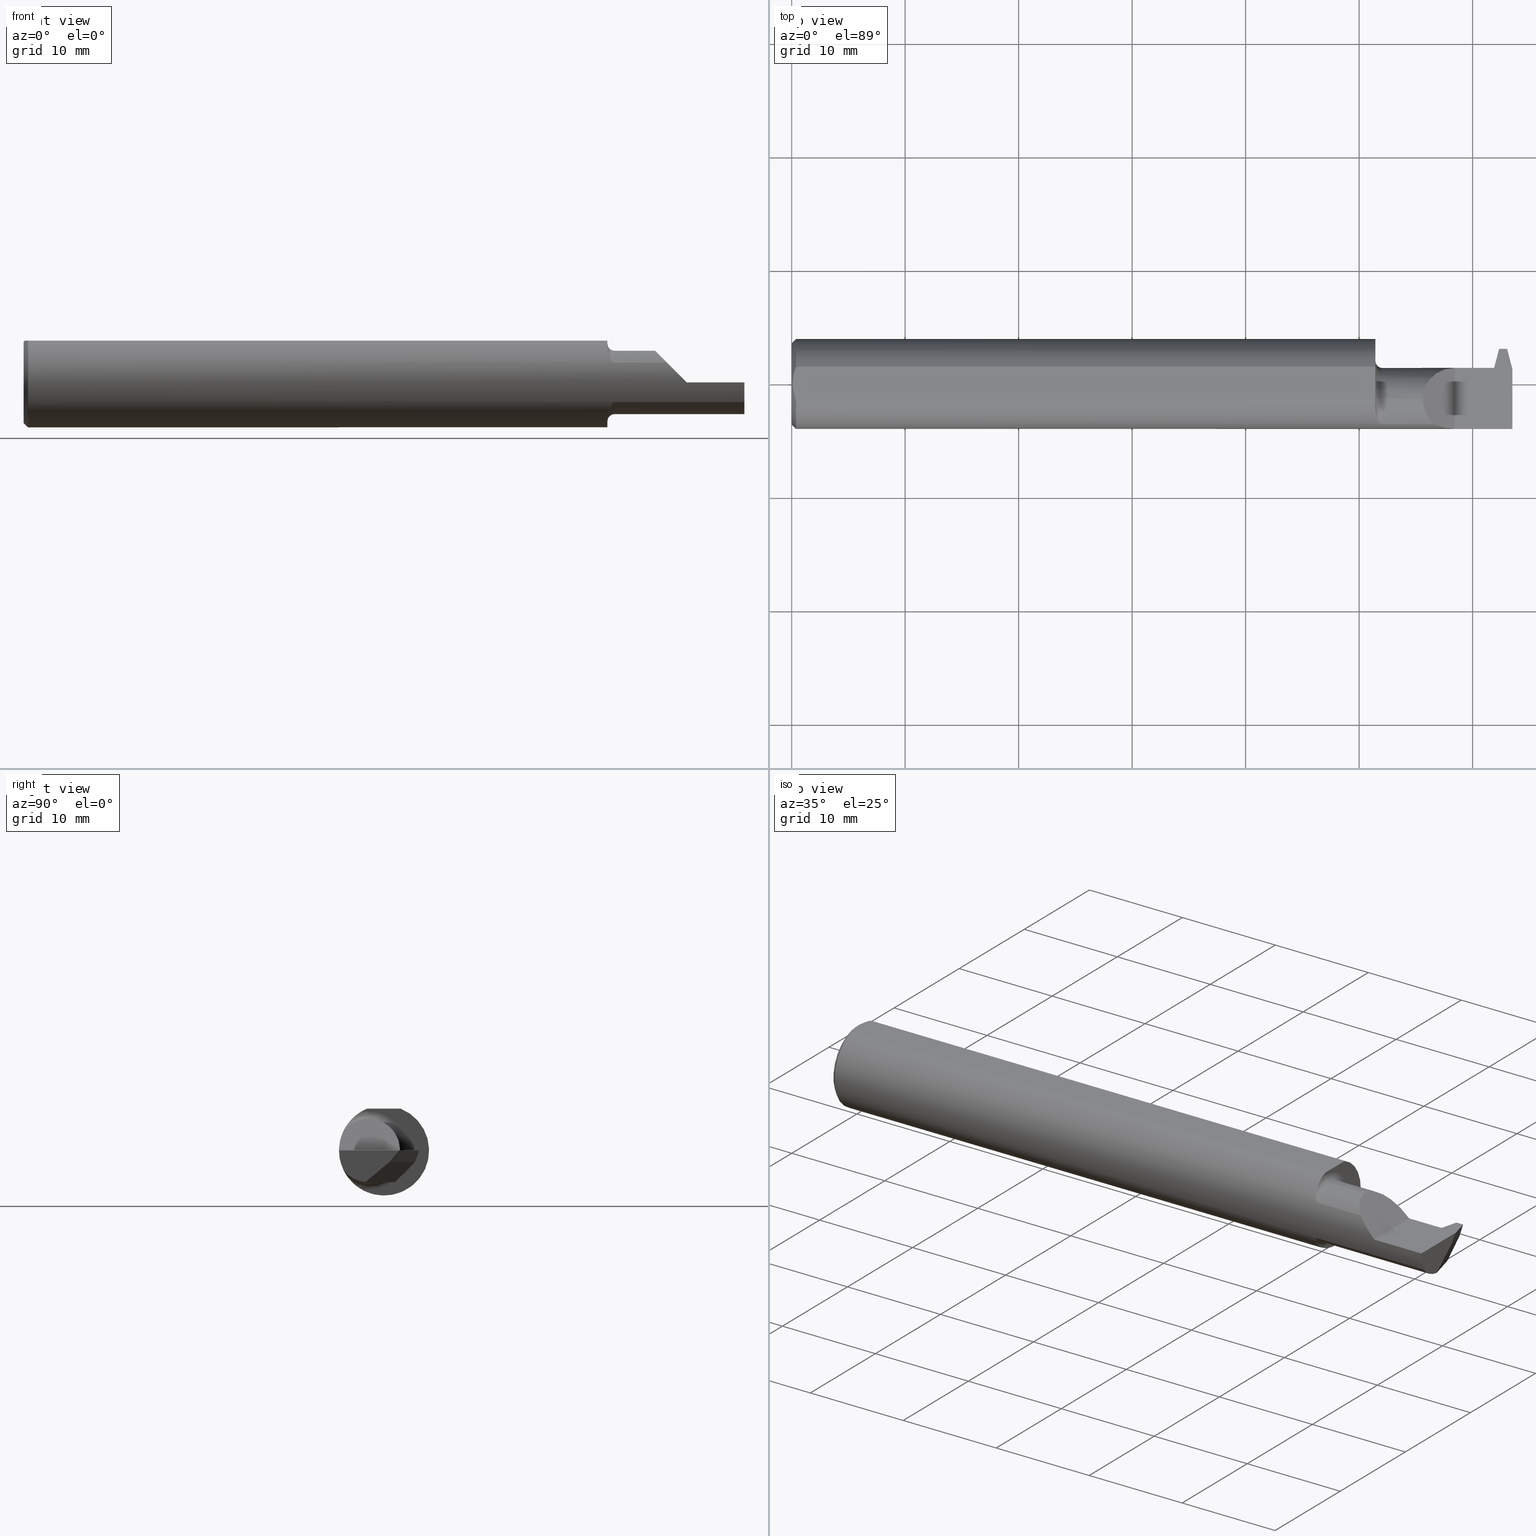
[diagram: canonical four-view strip — front | top / right | iso, engineering-drawing reading convention]
A machine part, canonical four-view strip (front | top / right | iso — engineering-drawing reading convention). The complete STEP part file that produces these views, byte-faithful:
ISO-10303-21;
HEADER;
FILE_DESCRIPTION (( 'STEP AP203' ),
    '1' );
FILE_NAME ('230958-FAT290400-12.STEP',
    '2024-05-22T18:25:25',
    ( '' ),
    ( '' ),
    'SwSTEP 2.0',
    'SolidWorks 2022',
    '' );
FILE_SCHEMA (( 'CONFIG_CONTROL_DESIGN' ));
ENDSEC;

DATA;
#1 = CARTESIAN_POINT ( 'NONE',  ( 2.476885438100390857, 0.1081268954684107969, -0.04000000000000260986 ) ) ;
#2 = CARTESIAN_POINT ( 'NONE',  ( 2.049999999999999822, -0.05409999999999997450, 0.1350000000000000089 ) ) ;
#3 = CIRCLE ( 'NONE', #535, 0.1350000000000000089 ) ;
#4 = ORIENTED_EDGE ( 'NONE', *, *, #199, .F. ) ;
#5 = AXIS2_PLACEMENT_3D ( 'NONE', #207, #698, #836 ) ;
#6 = DESIGN_CONTEXT ( 'detailed design', #864, 'design' ) ;
#7 = CARTESIAN_POINT ( 'NONE',  ( 2.300000000000000266, -0.1560999999999999888, -3.918740332231607202E-17 ) ) ;
#8 = DIRECTION ( 'NONE',  ( 0.7071067811865483499, 0.000000000000000000, -0.7071067811865466846 ) ) ;
#9 = VERTEX_POINT ( 'NONE', #893 ) ;
#10 = EDGE_LOOP ( 'NONE', ( #208, #696, #442 ) ) ;
#11 = CARTESIAN_POINT ( 'NONE',  ( 2.024999999999999911, -0.05409999999999999531, -0.1350000000000000089 ) ) ;
#12 = CARTESIAN_POINT ( 'NONE',  ( 0.01499999999999970281, 0.05756040305626777126, 0.1450999999999999790 ) ) ;
#13 = ORIENTED_EDGE ( 'NONE', *, *, #98, .T. ) ;
#14 = EDGE_CURVE ( 'NONE', #617, #563, #610, .T. ) ;
#15 = CARTESIAN_POINT ( 'NONE',  ( 2.500000000000000000, -0.06412741814737722701, -0.1095420051181173471 ) ) ;
#16 = DIRECTION ( 'NONE',  ( 0.000000000000000000, -0.7071067811865516806, 0.7071067811865434649 ) ) ;
#17 = ORIENTED_EDGE ( 'NONE', *, *, #268, .F. ) ;
#18 = CC_DESIGN_PERSON_AND_ORGANIZATION_ASSIGNMENT ( #269, #119, ( #662 ) ) ;
#19 = VECTOR ( 'NONE', #74, 39.37007874015748143 ) ;
#20 = CARTESIAN_POINT ( 'NONE',  ( 0.000000000000000000, 0.000000000000000000, 0.000000000000000000 ) ) ;
#21 = FACE_OUTER_BOUND ( 'NONE', #496, .T. ) ;
#22 = EDGE_CURVE ( 'NONE', #80, #72, #375, .T. ) ;
#23 = ORIENTED_EDGE ( 'NONE', *, *, #715, .T. ) ;
#24 = LOCAL_TIME ( 11, 25, 25.00000000000000000, #751 ) ;
#25 =( NAMED_UNIT ( * ) PLANE_ANGLE_UNIT ( ) SI_UNIT ( $, .RADIAN. ) );
#26 = LINE ( 'NONE', #683, #866 ) ;
#27 = EDGE_CURVE ( 'NONE', #346, #509, #370, .T. ) ;
#28 = CARTESIAN_POINT ( 'NONE',  ( 0.01499999999999970281, 0.000000000000000000, 0.000000000000000000 ) ) ;
#29 = ORIENTED_EDGE ( 'NONE', *, *, #554, .T. ) ;
#30 = CARTESIAN_POINT ( 'NONE',  ( 2.049999999999999822, -0.1404253234750461321, -0.06817579135535316304 ) ) ;
#31 = LINE ( 'NONE', #103, #229 ) ;
#32 = DIRECTION ( 'NONE',  ( 0.000000000000000000, 0.000000000000000000, -1.000000000000000000 ) ) ;
#33 = ADVANCED_FACE ( 'NONE', ( #606 ), #685, .F. ) ;
#34 = VERTEX_POINT ( 'NONE', #376 ) ;
#35 = AXIS2_PLACEMENT_3D ( 'NONE', #565, #220, #149 ) ;
#36 = CARTESIAN_POINT ( 'NONE',  ( 0.003999999999999595893, 1.377970445471898428E-17, 0.1450999999999999790 ) ) ;
#37 = VECTOR ( 'NONE', #594, 39.37007874015748143 ) ;
#38 = DIRECTION ( 'NONE',  ( -0.1200238624775773894, 0.3232146245633324422, 0.9386834284807352713 ) ) ;
#39 = VECTOR ( 'NONE', #735, 39.37007874015748854 ) ;
#40 = CARTESIAN_POINT ( 'NONE',  ( 2.024999999999999911, 0.05590000000000001218, -3.918740332231607202E-17 ) ) ;
#41 = ORIENTED_EDGE ( 'NONE', *, *, #380, .F. ) ;
#42 = AXIS2_PLACEMENT_3D ( 'NONE', #511, #452, #106 ) ;
#43 =( NAMED_UNIT ( * ) SI_UNIT ( $, .STERADIAN. ) SOLID_ANGLE_UNIT ( ) );
#44 = DIRECTION ( 'NONE',  ( -0.2503800040544335581, 0.9681476403781097417, -1.003538607613965293E-16 ) ) ;
#45 = CARTESIAN_POINT ( 'NONE',  ( 2.416931239432511092, 0.05590000000000005381, 0.000000000000000000 ) ) ;
#46 = ORIENTED_EDGE ( 'NONE', *, *, #917, .F. ) ;
#47 = EDGE_CURVE ( 'NONE', #844, #72, #321, .T. ) ;
#48 = PERSON_AND_ORGANIZATION ( #482, #135 ) ;
#49 = CARTESIAN_POINT ( 'NONE',  ( 2.443435339008330320, -0.03363394074619024954, -0.1080793246584172140 ) ) ;
#50 = DIRECTION ( 'NONE',  ( 0.000000000000000000, -0.6426264403010609749, -0.7661796514042817918 ) ) ;
#51 = VERTEX_POINT ( 'NONE', #888 ) ;
#52 = PERSON_AND_ORGANIZATION_ROLE ( 'creator' ) ;
#53 = AXIS2_PLACEMENT_3D ( 'NONE', #463, #109, #736 ) ;
#54 = PLANE ( 'NONE',  #821 ) ;
#55 = CARTESIAN_POINT ( 'NONE',  ( 2.500000000000000000, 0.1107574376735033922, -0.1100000000000000283 ) ) ;
#56 = ORIENTED_EDGE ( 'NONE', *, *, #27, .T. ) ;
#57 = EDGE_CURVE ( 'NONE', #320, #712, #261, .T. ) ;
#58 = APPROVAL_ROLE ( '' ) ;
#59 = AXIS2_PLACEMENT_3D ( 'NONE', #235, #528, #440 ) ;
#60 = DIRECTION ( 'NONE',  ( 0.9277270166603265311, 0.2399265199903823365, -0.2859332921571657860 ) ) ;
#61 = DIRECTION ( 'NONE',  ( 0.000000000000000000, 0.000000000000000000, -1.000000000000000000 ) ) ;
#62 = EDGE_CURVE ( 'NONE', #720, #563, #381, .T. ) ;
#63 = ORIENTED_EDGE ( 'NONE', *, *, #454, .F. ) ;
#64 = DIRECTION ( 'NONE',  ( -0.2945363905204630983, 0.000000000000000000, -0.9556402642517618506 ) ) ;
#65 = CARTESIAN_POINT ( 'NONE',  ( 2.447935725133934870, 0.03387289330929962872, -0.06603612680034005866 ) ) ;
#66 = ORIENTED_EDGE ( 'NONE', *, *, #426, .T. ) ;
#67 = EDGE_CURVE ( 'NONE', #147, #574, #432, .T. ) ;
#68 = COORDINATED_UNIVERSAL_TIME_OFFSET ( 8, 0, .BEHIND. ) ;
#69 = DIRECTION ( 'NONE',  ( 0.000000000000000000, 0.000000000000000000, -1.000000000000000000 ) ) ;
#70 = CIRCLE ( 'NONE', #909, 0.1350000000000000089 ) ;
#71 = FACE_OUTER_BOUND ( 'NONE', #492, .T. ) ;
#72 = VERTEX_POINT ( 'NONE', #312 ) ;
#73 = EDGE_CURVE ( 'NONE', #650, #847, #818, .T. ) ;
#74 = DIRECTION ( 'NONE',  ( -0.000000000000000000, 1.000000000000000000, -0.000000000000000000 ) ) ;
#75 = VECTOR ( 'NONE', #785, 39.37007874015748854 ) ;
#76 = DIRECTION ( 'NONE',  ( -0.000000000000000000, 0.000000000000000000, -1.000000000000000000 ) ) ;
#77 = ORIENTED_EDGE ( 'NONE', *, *, #874, .F. ) ;
#78 = DIRECTION ( 'NONE',  ( 0.000000000000000000, -8.537024980200821818E-16, -1.000000000000000000 ) ) ;
#79 = DIRECTION ( 'NONE',  ( -1.000000000000000000, -0.000000000000000000, -0.000000000000000000 ) ) ;
#80 = VERTEX_POINT ( 'NONE', #600 ) ;
#81 = FACE_OUTER_BOUND ( 'NONE', #284, .T. ) ;
#82 = CARTESIAN_POINT ( 'NONE',  ( 2.031403200130683651, -0.1234706953780182193, -0.09581413073336600417 ) ) ;
#83 = VECTOR ( 'NONE', #195, 39.37007874015748143 ) ;
#84 = EDGE_LOOP ( 'NONE', ( #428, #365, #510, #382 ) ) ;
#85 = ORIENTED_EDGE ( 'NONE', *, *, #694, .F. ) ;
#86 = VECTOR ( 'NONE', #79, 39.37007874015748143 ) ;
#87 = CARTESIAN_POINT ( 'NONE',  ( 2.459689586855829280, 0.1438999999999999724, 0.000000000000000000 ) ) ;
#88 = ADVANCED_FACE ( 'NONE', ( #397 ), #807, .T. ) ;
#89 = CARTESIAN_POINT ( 'NONE',  ( 2.048017170444489388, -0.1404253234750461876, -0.06817579135535316304 ) ) ;
#90 = VECTOR ( 'NONE', #794, 39.37007874015748143 ) ;
#91 = ORIENTED_EDGE ( 'NONE', *, *, #554, .F. ) ;
#92 = CARTESIAN_POINT ( 'NONE',  ( 2.235563491861040308, 0.05590000000000019259, 0.06443650813895937524 ) ) ;
#93 = CARTESIAN_POINT ( 'NONE',  ( 2.459689586855829280, 0.1438999999999999724, 0.000000000000000000 ) ) ;
#94 = APPROVAL ( #829, 'UNSPECIFIED' ) ;
#95 = ORIENTED_EDGE ( 'NONE', *, *, #595, .T. ) ;
#96 = ORIENTED_EDGE ( 'NONE', *, *, #742, .F. ) ;
#97 = CARTESIAN_POINT ( 'NONE',  ( 2.500000000000000000, -0.1560999999999999888, -3.918740332231607202E-17 ) ) ;
#98 = EDGE_CURVE ( 'NONE', #439, #9, #121, .T. ) ;
#99 = FACE_OUTER_BOUND ( 'NONE', #602, .T. ) ;
#100 = EDGE_CURVE ( 'NONE', #574, #147, #690, .T. ) ;
#101 = ORIENTED_EDGE ( 'NONE', *, *, #210, .T. ) ;
#102 = VECTOR ( 'NONE', #50, 39.37007874015748854 ) ;
#103 = CARTESIAN_POINT ( 'NONE',  ( 2.457349483508902033, 0.05551813835601961122, -0.1927869246668192371 ) ) ;
#104 = CARTESIAN_POINT ( 'NONE',  ( 2.229999999999999982, -0.1404253234750461321, -0.06817579135535316304 ) ) ;
#105 = CONICAL_SURFACE ( 'NONE', #506, 0.1560999999999999888, 0.7853981633974471688 ) ;
#106 = DIRECTION ( 'NONE',  ( 0.000000000000000000, 0.000000000000000000, -1.000000000000000000 ) ) ;
#107 = PLANE ( 'NONE',  #474 ) ;
#108 = EDGE_CURVE ( 'NONE', #164, #739, #748, .T. ) ;
#109 = DIRECTION ( 'NONE',  ( -1.000000000000000000, -0.000000000000000000, -0.000000000000000000 ) ) ;
#110 = ORIENTED_EDGE ( 'NONE', *, *, #137, .T. ) ;
#111 = CARTESIAN_POINT ( 'NONE',  ( 2.443435339008330320, 0.04749983899686319871, -0.04000000000000260292 ) ) ;
#112 = DIRECTION ( 'NONE',  ( -1.000000000000000000, -0.000000000000000000, -0.000000000000000000 ) ) ;
#113 = CARTESIAN_POINT ( 'NONE',  ( 0.01499999999999970281, 0.000000000000000000, 0.000000000000000000 ) ) ;
#114 = EDGE_LOOP ( 'NONE', ( #484, #912, #774, #570, #478, #401 ) ) ;
#115 = VECTOR ( 'NONE', #8, 39.37007874015748143 ) ;
#116 = CARTESIAN_POINT ( 'NONE',  ( 2.457474761053956236, 0.09975966310312084362, -0.1100000000000000283 ) ) ;
#117 = CARTESIAN_POINT ( 'NONE',  ( 2.300000000000000266, 0.1219000000000004108, -3.918740332231607202E-17 ) ) ;
#118 = VERTEX_POINT ( 'NONE', #668 ) ;
#119 = PERSON_AND_ORGANIZATION_ROLE ( 'classification_officer' ) ;
#120 = CARTESIAN_POINT ( 'NONE',  ( 2.025408103372245527, -0.09658968664339810661, 0.1228705714355937950 ) ) ;
#121 = LINE ( 'NONE', #450, #37 ) ;
#122 = ORIENTED_EDGE ( 'NONE', *, *, #14, .F. ) ;
#123 = DIRECTION ( 'NONE',  ( -1.000000000000000000, 0.000000000000000000, 0.000000000000000000 ) ) ;
#124 = CARTESIAN_POINT ( 'NONE',  ( 2.049999999999999822, -0.05409999999999999531, -0.1350000000000000089 ) ) ;
#125 = ADVANCED_FACE ( 'NONE', ( #812 ), #288, .T. ) ;
#126 = VERTEX_POINT ( 'NONE', #520 ) ;
#127 = APPROVAL_ROLE ( '' ) ;
#128 = CARTESIAN_POINT ( 'NONE',  ( 2.433435339008330534, 0.04749983899686319871, -0.04000000000000260292 ) ) ;
#129 = ADVANCED_FACE ( 'NONE', ( #738 ), #882, .T. ) ;
#130 = LINE ( 'NONE', #919, #86 ) ;
#131 = CIRCLE ( 'NONE', #243, 0.02499999999999999098 ) ;
#132 =( BOUNDED_CURVE ( )  B_SPLINE_CURVE ( 3, ( #790, #92, #868, #366 ),
 .UNSPECIFIED., .F., .F. ) 
 B_SPLINE_CURVE_WITH_KNOTS ( ( 4, 4 ),
 ( 4.712388980384687009, 6.283185307179586232 ),
 .UNSPECIFIED. ) 
 CURVE ( )  GEOMETRIC_REPRESENTATION_ITEM ( )  RATIONAL_B_SPLINE_CURVE ( ( 1.000000000000000000, 0.8047378541243643824, 0.8047378541243643824, 1.000000000000000000 ) ) 
 REPRESENTATION_ITEM ( '' )  );
#133 = ORIENTED_EDGE ( 'NONE', *, *, #586, .T. ) ;
#134 = PERSON_AND_ORGANIZATION ( #482, #135 ) ;
#135 = ORGANIZATION ( 'UNSPECIFIED', 'UNSPECIFIED', '' ) ;
#136 = CARTESIAN_POINT ( 'NONE',  ( 2.450468519194640482, 0.01720710617663754466, -0.08823817868278979737 ) ) ;
#137 = EDGE_CURVE ( 'NONE', #654, #309, #181, .T. ) ;
#138 = FACE_OUTER_BOUND ( 'NONE', #726, .T. ) ;
#139 = VERTEX_POINT ( 'NONE', #689 ) ;
#140 = DATE_AND_TIME ( #259, #24 ) ;
#141 = PLANE ( 'NONE',  #502 ) ;
#142 = CARTESIAN_POINT ( 'NONE',  ( 2.453019872896905262, 0.01270421248208411513, -0.09423690401342238454 ) ) ;
#143 = ORIENTED_EDGE ( 'NONE', *, *, #323, .F. ) ;
#144 = CARTESIAN_POINT ( 'NONE',  ( 2.500000000000000000, -0.06412741814737722701, -0.1095420051181173471 ) ) ;
#145 = VECTOR ( 'NONE', #557, 39.37007874015748854 ) ;
#146 = DIRECTION ( 'NONE',  ( 0.000000000000000000, -1.000000000000000000, 1.035685753785427298E-16 ) ) ;
#147 = VERTEX_POINT ( 'NONE', #550 ) ;
#148 = VECTOR ( 'NONE', #636, 39.37007874015748854 ) ;
#149 = DIRECTION ( 'NONE',  ( 0.000000000000000000, 0.000000000000000000, -1.000000000000000000 ) ) ;
#150 = ORIENTED_EDGE ( 'NONE', *, *, #249, .F. ) ;
#151 = CARTESIAN_POINT ( 'NONE',  ( 2.024999999999999911, -0.05409999999999997450, 0.1350000000000000089 ) ) ;
#152 = CARTESIAN_POINT ( 'NONE',  ( 2.024999999999999911, -0.05409999999999999531, 0.000000000000000000 ) ) ;
#153 = VERTEX_POINT ( 'NONE', #191 ) ;
#154 = DIRECTION ( 'NONE',  ( -0.000000000000000000, 0.2055210070593990190, 0.9786527043120508695 ) ) ;
#155 = ADVANCED_FACE ( 'NONE', ( #905 ), #283, .F. ) ;
#156 = CARTESIAN_POINT ( 'NONE',  ( 2.037623797854640539, -0.1338035519503443793, -0.08048043396403946337 ) ) ;
#157 = CIRCLE ( 'NONE', #35, 0.1560999999999999888 ) ;
#158 = ORIENTED_EDGE ( 'NONE', *, *, #179, .F. ) ;
#159 = VECTOR ( 'NONE', #711, 39.37007874015748143 ) ;
#160 = CC_DESIGN_DATE_AND_TIME_ASSIGNMENT ( #204, #618, ( #479 ) ) ;
#161 = CARTESIAN_POINT ( 'NONE',  ( 2.500000000000000000, -0.05756040305626777126, 0.1450999999999999790 ) ) ;
#162 = CARTESIAN_POINT ( 'NONE',  ( 2.046255291801899912, -0.1399378351544087185, -0.06918406497295909174 ) ) ;
#163 = AXIS2_PLACEMENT_3D ( 'NONE', #20, #589, #597 ) ;
#164 = VERTEX_POINT ( 'NONE', #637 ) ;
#165 = CARTESIAN_POINT ( 'NONE',  ( 2.049999999999999822, -0.05409999999999997450, -0.1100000000000000006 ) ) ;
#166 = CARTESIAN_POINT ( 'NONE',  ( 2.024999999999999911, -0.08381719038816995426, -0.1316886046529207599 ) ) ;
#167 = ORIENTED_EDGE ( 'NONE', *, *, #817, .T. ) ;
#168 = DIRECTION ( 'NONE',  ( -0.03268736195502728453, 0.9994656254061071721, -1.032248020528189877E-16 ) ) ;
#169 = DIRECTION ( 'NONE',  ( 0.000000000000000000, 0.000000000000000000, 1.000000000000000000 ) ) ;
#170 = AXIS2_PLACEMENT_3D ( 'NONE', #28, #385, #32 ) ;
#171 = CARTESIAN_POINT ( 'NONE',  ( 0.003999999999996986001, -0.009882491626910055310, 0.1450999999999999790 ) ) ;
#172 = CARTESIAN_POINT ( 'NONE',  ( 2.436931239432511553, 0.05590000000000006075, 0.000000000000000000 ) ) ;
#173 = CARTESIAN_POINT ( 'NONE',  ( 2.413720460968152626, 0.05589999999999999830, -0.01528912821151733568 ) ) ;
#174 = ORIENTED_EDGE ( 'NONE', *, *, #57, .F. ) ;
#175 = CARTESIAN_POINT ( 'NONE',  ( 2.028193910147385370, -0.1136745389711200649, 0.1072484500910515781 ) ) ;
#176 = DIRECTION ( 'NONE',  ( 1.000000000000000000, 0.000000000000000000, 0.000000000000000000 ) ) ;
#177 = ORIENTED_EDGE ( 'NONE', *, *, #867, .F. ) ;
#178 = DIRECTION ( 'NONE',  ( 0.000000000000000000, 0.000000000000000000, -1.000000000000000000 ) ) ;
#179 = EDGE_CURVE ( 'NONE', #587, #712, #519, .T. ) ;
#180 = LINE ( 'NONE', #238, #202 ) ;
#181 = LINE ( 'NONE', #459, #403 ) ;
#182 = VERTEX_POINT ( 'NONE', #634 ) ;
#183 = AXIS2_PLACEMENT_3D ( 'NONE', #543, #270, #123 ) ;
#184 = PERSON_AND_ORGANIZATION ( #482, #135 ) ;
#185 = CARTESIAN_POINT ( 'NONE',  ( 2.033416808568586198, -0.1279360967279929984, 0.08973580099040201485 ) ) ;
#186 = CARTESIAN_POINT ( 'NONE',  ( 2.467999999999999972, 0.1424843353251054323, -0.04000000000000260292 ) ) ;
#187 = CIRCLE ( 'NONE', #678, 0.1100000000000000006 ) ;
#188 = ORIENTED_EDGE ( 'NONE', *, *, #387, .T. ) ;
#189 = CARTESIAN_POINT ( 'NONE',  ( 0.003999999999999595893, 1.377970445471898428E-17, 0.1450999999999999790 ) ) ;
#190 = ADVANCED_FACE ( 'NONE', ( #138 ), #241, .F. ) ;
#191 = CARTESIAN_POINT ( 'NONE',  ( 2.443435339008330320, 0.04749983899686319871, -0.04000000000000260292 ) ) ;
#192 = ORIENTED_EDGE ( 'NONE', *, *, #867, .T. ) ;
#193 = EDGE_CURVE ( 'NONE', #650, #801, #316, .T. ) ;
#194 = PERSON_AND_ORGANIZATION ( #482, #135 ) ;
#195 = DIRECTION ( 'NONE',  ( -1.000000000000000000, -0.000000000000000000, -0.000000000000000000 ) ) ;
#196 = ORIENTED_EDGE ( 'NONE', *, *, #523, .F. ) ;
#197 = SHAPE_DEFINITION_REPRESENTATION ( #354, #772 ) ;
#198 = AXIS2_PLACEMENT_3D ( 'NONE', #408, #60, #64 ) ;
#199 = EDGE_CURVE ( 'NONE', #471, #429, #431, .T. ) ;
#200 = LINE ( 'NONE', #260, #671 ) ;
#201 = CARTESIAN_POINT ( 'NONE',  ( 2.049999999999999822, -0.05409999999999999531, 0.000000000000000000 ) ) ;
#202 = VECTOR ( 'NONE', #449, 39.37007874015748143 ) ;
#203 = ORIENTED_EDGE ( 'NONE', *, *, #608, .F. ) ;
#204 = DATE_AND_TIME ( #692, #793 ) ;
#205 = CC_DESIGN_APPROVAL ( #281, ( #332 ) ) ;
#206 = PLANE ( 'NONE',  #198 ) ;
#207 = CARTESIAN_POINT ( 'NONE',  ( 2.476310413144170663, 0.1438999999999999724, 0.000000000000000000 ) ) ;
#208 = ORIENTED_EDGE ( 'NONE', *, *, #777, .T. ) ;
#209 = CARTESIAN_POINT ( 'NONE',  ( 2.049999999999999822, -0.05409999999999999531, 0.000000000000000000 ) ) ;
#210 = EDGE_CURVE ( 'NONE', #838, #709, #131, .T. ) ;
#211 = DIRECTION ( 'NONE',  ( 0.000000000000000000, -0.3255681544571570329, -0.9455185755993166241 ) ) ;
#212 = ORIENTED_EDGE ( 'NONE', *, *, #199, .T. ) ;
#213 = PLANE ( 'NONE',  #588 ) ;
#214 = CARTESIAN_POINT ( 'NONE',  ( 2.039206631919841861, -0.1356135290907077573, -0.07737645377574914329 ) ) ;
#215 = EDGE_LOOP ( 'NONE', ( #333, #489, #143, #63 ) ) ;
#216 = DIMENSIONAL_EXPONENTS ( 1.000000000000000000, 0.000000000000000000, 0.000000000000000000, 0.000000000000000000, 0.000000000000000000, 0.000000000000000000, 0.000000000000000000 ) ;
#217 = VECTOR ( 'NONE', #497, 39.37007874015748143 ) ;
#218 = CARTESIAN_POINT ( 'NONE',  ( 0.005017455651907636906, 0.01961184984831247299, 0.1450999999999999790 ) ) ;
#219 = ADVANCED_FACE ( 'NONE', ( #279 ), #343, .F. ) ;
#220 = DIRECTION ( 'NONE',  ( 1.000000000000000000, -0.000000000000000000, -0.000000000000000000 ) ) ;
#221 = ORIENTED_EDGE ( 'NONE', *, *, #858, .F. ) ;
#222 = ADVANCED_FACE ( 'NONE', ( #71 ), #562, .F. ) ;
#223 = CARTESIAN_POINT ( 'NONE',  ( 2.433435339008330534, 0.05590000000000006075, 3.001376171470361759E-19 ) ) ;
#224 = LINE ( 'NONE', #93, #802 ) ;
#225 = ORIENTED_EDGE ( 'NONE', *, *, #500, .F. ) ;
#226 = CARTESIAN_POINT ( 'NONE',  ( 0.003999999999997044114, 0.009886684785571414960, 0.1450999999999999512 ) ) ;
#227 = EDGE_CURVE ( 'NONE', #80, #72, #761, .T. ) ;
#228 = DIRECTION ( 'NONE',  ( 0.000000000000000000, 0.6427876096865380307, -0.7660444431189791237 ) ) ;
#229 = VECTOR ( 'NONE', #811, 39.37007874015747433 ) ;
#230 = ORIENTED_EDGE ( 'NONE', *, *, #62, .F. ) ;
#231 = LINE ( 'NONE', #507, #90 ) ;
#232 = EDGE_CURVE ( 'NONE', #676, #654, #832, .T. ) ;
#233 = DIRECTION ( 'NONE',  ( 0.000000000000000000, 1.000000000000000000, -1.224646799147353207E-16 ) ) ;
#234 = ORIENTED_EDGE ( 'NONE', *, *, #523, .T. ) ;
#235 = CARTESIAN_POINT ( 'NONE',  ( 2.500000000000000000, 0.000000000000000000, 0.000000000000000000 ) ) ;
#236 = CARTESIAN_POINT ( 'NONE',  ( 2.048004332278162920, -0.1404253234750461321, 0.06817579135535317691 ) ) ;
#237 = ORIENTED_EDGE ( 'NONE', *, *, #193, .T. ) ;
#238 = CARTESIAN_POINT ( 'NONE',  ( 2.500000000000000000, -0.05410000000000000919, -0.1100000000000000006 ) ) ;
#239 = DIRECTION ( 'NONE',  ( 0.000000000000000000, 0.000000000000000000, -1.000000000000000000 ) ) ;
#240 = AXIS2_PLACEMENT_3D ( 'NONE', #481, #475, #845 ) ;
#241 = TOROIDAL_SURFACE ( 'NONE', #762, 0.1350000000000000089, 0.02500000000000000139 ) ;
#242 = ORIENTED_EDGE ( 'NONE', *, *, #488, .T. ) ;
#243 = AXIS2_PLACEMENT_3D ( 'NONE', #124, #901, #843 ) ;
#244 = CARTESIAN_POINT ( 'NONE',  ( 2.433435339008330534, 0.04749983899686319871, -0.04000000000000260292 ) ) ;
#245 = DIRECTION ( 'NONE',  ( 0.000000000000000000, -0.2055210070593990190, -0.9786527043120508695 ) ) ;
#246 = CARTESIAN_POINT ( 'NONE',  ( 2.024999999999999911, 0.2559000000000000163, 0.000000000000000000 ) ) ;
#247 = CIRCLE ( 'NONE', #708, 0.1350000000000000089 ) ;
#248 = VERTEX_POINT ( 'NONE', #487 ) ;
#249 = EDGE_CURVE ( 'NONE', #504, #857, #331, .T. ) ;
#250 = CYLINDRICAL_SURFACE ( 'NONE', #362, 0.1560999999999999888 ) ;
#251 = CARTESIAN_POINT ( 'NONE',  ( 2.231824208644646479, -0.1404253234750460488, 0.06817579135535328794 ) ) ;
#252 = DIRECTION ( 'NONE',  ( 1.000000000000000000, 0.000000000000000000, 0.000000000000000000 ) ) ;
#253 = ORIENTED_EDGE ( 'NONE', *, *, #576, .T. ) ;
#254 = CARTESIAN_POINT ( 'NONE',  ( 0.01499999999999970281, 0.000000000000000000, -0.1560999999999999888 ) ) ;
#255 = CARTESIAN_POINT ( 'NONE',  ( 2.410578223941060916, 0.05275776297290870470, -0.03025187488229246977 ) ) ;
#256 = ORIENTED_EDGE ( 'NONE', *, *, #417, .T. ) ;
#257 = VECTOR ( 'NONE', #176, 39.37007874015748143 ) ;
#258 = ADVANCED_FACE ( 'NONE', ( #409 ), #910, .F. ) ;
#259 = CALENDAR_DATE ( 2024, 22, 5 ) ;
#260 = CARTESIAN_POINT ( 'NONE',  ( 2.436931239432511553, 0.05590000000000006075, 0.000000000000000000 ) ) ;
#261 = LINE ( 'NONE', #824, #615 ) ;
#262 = APPROVAL_PERSON_ORGANIZATION ( #560, #281, #58 ) ;
#263 = EDGE_LOOP ( 'NONE', ( #336, #110, #733 ) ) ;
#264 = FACE_OUTER_BOUND ( 'NONE', #542, .T. ) ;
#265 = CARTESIAN_POINT ( 'NONE',  ( 2.229999999999999982, -0.1404253234750461321, 0.06817579135535316304 ) ) ;
#266 = B_SPLINE_CURVE_WITH_KNOTS ( 'NONE', 3,
 ( #36, #171, #317, #532, #603, #310 ),
 .UNSPECIFIED., .F., .F.,
 ( 4, 2, 4 ),
 ( 0.004431269906162800011, 0.005173847132308577804, 0.005916424358454355596 ),
 .UNSPECIFIED. ) ;
#267 = ORIENTED_EDGE ( 'NONE', *, *, #694, .T. ) ;
#268 = EDGE_CURVE ( 'NONE', #164, #617, #419, .T. ) ;
#269 = PERSON_AND_ORGANIZATION ( #482, #135 ) ;
#270 = DIRECTION ( 'NONE',  ( -0.000000000000000000, 0.000000000000000000, -1.000000000000000000 ) ) ;
#271 = DIRECTION ( 'NONE',  ( 0.000000000000000000, 0.000000000000000000, -1.000000000000000000 ) ) ;
#272 = ORIENTED_EDGE ( 'NONE', *, *, #686, .F. ) ;
#273 = VECTOR ( 'NONE', #716, 39.37007874015748143 ) ;
#274 = PLANE ( 'NONE',  #240 ) ;
#275 = CARTESIAN_POINT ( 'NONE',  ( 2.425128570000000039, 0.05678636910856870584, -0.1891037151198633748 ) ) ;
#276 = ORIENTED_EDGE ( 'NONE', *, *, #595, .F. ) ;
#277 = APPROVAL_PERSON_ORGANIZATION ( #612, #814, #468 ) ;
#278 = CARTESIAN_POINT ( 'NONE',  ( 2.500000000000000000, -0.1404253234750461043, -0.06817579135535321855 ) ) ;
#279 = FACE_OUTER_BOUND ( 'NONE', #215, .T. ) ;
#280 = EDGE_LOOP ( 'NONE', ( #559, #763, #531, #13, #322 ) ) ;
#281 = APPROVAL ( #407, 'UNSPECIFIED' ) ;
#282 = CARTESIAN_POINT ( 'NONE',  ( 0.000000000000000000, 0.000000000000000000, 0.000000000000000000 ) ) ;
#283 = PLANE ( 'NONE',  #5 ) ;
#284 = EDGE_LOOP ( 'NONE', ( #788, #327 ) ) ;
#285 = ADVANCED_FACE ( 'NONE', ( #757 ), #545, .F. ) ;
#286 = CARTESIAN_POINT ( 'NONE',  ( 2.024999999999999911, 0.05756040305626777126, 0.1450999999999999790 ) ) ;
#287 = AXIS2_PLACEMENT_3D ( 'NONE', #2, #233, #863 ) ;
#288 = CONICAL_SURFACE ( 'NONE', #721, 0.1560999999999999888, 0.7853981633974471688 ) ;
#289 = CARTESIAN_POINT ( 'NONE',  ( 2.482537408317582628, 0.1152735709510032125, -0.1100000000000000283 ) ) ;
#290 = ORIENTED_EDGE ( 'NONE', *, *, #100, .F. ) ;
#291 = EDGE_CURVE ( 'NONE', #771, #80, #130, .T. ) ;
#292 = DIRECTION ( 'NONE',  ( -1.000000000000000000, -0.000000000000000000, -0.000000000000000000 ) ) ;
#293 = CARTESIAN_POINT ( 'NONE',  ( 2.433435339008330534, 0.04749983899686319871, -0.04000000000000260292 ) ) ;
#294 = EDGE_LOOP ( 'NONE', ( #797, #626, #718, #744, #730, #451, #920, #546, #877, #536, #461 ) ) ;
#295 = EDGE_CURVE ( 'NONE', #574, #623, #364, .T. ) ;
#296 = LINE ( 'NONE', #854, #19 ) ;
#297 = CARTESIAN_POINT ( 'NONE',  ( 2.500000000000000000, 0.1650000000000000078, -3.918740332231607202E-17 ) ) ;
#298 = ORIENTED_EDGE ( 'NONE', *, *, #27, .F. ) ;
#299 = ORIENTED_EDGE ( 'NONE', *, *, #488, .F. ) ;
#300 = CARTESIAN_POINT ( 'NONE',  ( 2.453999999999999737, 0.1219000000000000777, 0.000000000000000000 ) ) ;
#301 = PLANE ( 'NONE',  #552 ) ;
#302 = AXIS2_PLACEMENT_3D ( 'NONE', #152, #495, #783 ) ;
#303 = ORIENTED_EDGE ( 'NONE', *, *, #715, .F. ) ;
#304 = AXIS2_PLACEMENT_3D ( 'NONE', #815, #803, #178 ) ;
#305 = CARTESIAN_POINT ( 'NONE',  ( 2.452318913368295661, 0.1091980354314240342, -0.1100000000000000283 ) ) ;
#306 = ORIENTED_EDGE ( 'NONE', *, *, #446, .T. ) ;
#307 = DIRECTION ( 'NONE',  ( 0.000000000000000000, 0.000000000000000000, -1.000000000000000000 ) ) ;
#308 = DIRECTION ( 'NONE',  ( -1.000000000000000000, 2.265078523550430997E-15, 0.000000000000000000 ) ) ;
#309 = VERTEX_POINT ( 'NONE', #438 ) ;
#310 = CARTESIAN_POINT ( 'NONE',  ( 0.01499999999999970107, -0.05756040305626777126, 0.1450999999999999790 ) ) ;
#311 = CARTESIAN_POINT ( 'NONE',  ( 2.049999999999999822, -0.1404253234750461321, 0.06817579135535316304 ) ) ;
#312 = CARTESIAN_POINT ( 'NONE',  ( 2.416931239432511092, 0.05590000000000005381, 0.000000000000000000 ) ) ;
#313 = AXIS2_PLACEMENT_3D ( 'NONE', #246, #526, #530 ) ;
#314 = ORIENTED_EDGE ( 'NONE', *, *, #22, .T. ) ;
#315 = ADVANCED_FACE ( 'NONE', ( #99 ), #301, .T. ) ;
#316 = CIRCLE ( 'NONE', #402, 0.1100000000000000006 ) ;
#317 = CARTESIAN_POINT ( 'NONE',  ( 0.005042865002153306721, -0.01979865541750971611, 0.1451000000000000068 ) ) ;
#318 = CARTESIAN_POINT ( 'NONE',  ( 2.024999999999999911, -0.05409999999999999531, 0.000000000000000000 ) ) ;
#319 = CC_DESIGN_PERSON_AND_ORGANIZATION_ASSIGNMENT ( #134, #548, ( #479 ) ) ;
#320 = VERTEX_POINT ( 'NONE', #12 ) ;
#321 = LINE ( 'NONE', #40, #257 ) ;
#322 = ORIENTED_EDGE ( 'NONE', *, *, #448, .F. ) ;
#323 = EDGE_CURVE ( 'NONE', #587, #847, #486, .T. ) ;
#324 = SECURITY_CLASSIFICATION_LEVEL ( 'unclassified' ) ;
#325 = DIRECTION ( 'NONE',  ( 0.000000000000000000, 0.000000000000000000, -1.000000000000000000 ) ) ;
#326 = CARTESIAN_POINT ( 'NONE',  ( 2.500000000000000000, 0.03070124421839661583, -0.02575039841990182238 ) ) ;
#327 = ORIENTED_EDGE ( 'NONE', *, *, #100, .T. ) ;
#328 = AXIS2_PLACEMENT_3D ( 'NONE', #447, #665, #614 ) ;
#329 = COORDINATED_UNIVERSAL_TIME_OFFSET ( 8, 0, .BEHIND. ) ;
#330 = DIRECTION ( 'NONE',  ( -1.000000000000000000, -0.000000000000000000, -0.000000000000000000 ) ) ;
#331 = LINE ( 'NONE', #265, #764 ) ;
#332 = PRODUCT_DEFINITION_FORMATION_WITH_SPECIFIED_SOURCE ( 'ANY', '', #717, .NOT_KNOWN. ) ;
#333 = ORIENTED_EDGE ( 'NONE', *, *, #210, .F. ) ;
#334 = LINE ( 'NONE', #913, #83 ) ;
#335 = CARTESIAN_POINT ( 'NONE',  ( 2.024999999999999911, 0.000000000000000000, 0.000000000000000000 ) ) ;
#336 = ORIENTED_EDGE ( 'NONE', *, *, #232, .T. ) ;
#337 = DATE_AND_TIME ( #395, #914 ) ;
#338 = CARTESIAN_POINT ( 'NONE',  ( 2.498131500062764854, -0.05744828201812200719, -0.1099999999999999867 ) ) ;
#339 = DIRECTION ( 'NONE',  ( 0.000000000000000000, 0.000000000000000000, -1.000000000000000000 ) ) ;
#340 = ADVANCED_FACE ( 'NONE', ( #579 ), #433, .F. ) ;
#341 = ORIENTED_EDGE ( 'NONE', *, *, #805, .F. ) ;
#342 = DATE_AND_TIME ( #553, #620 ) ;
#343 = TOROIDAL_SURFACE ( 'NONE', #835, 0.1350000000000000089, 0.02500000000000000139 ) ;
#344 = DIRECTION ( 'NONE',  ( 0.000000000000000000, 0.000000000000000000, -1.000000000000000000 ) ) ;
#345 = DIRECTION ( 'NONE',  ( 1.000000000000000000, 0.000000000000000000, 0.000000000000000000 ) ) ;
#346 = VERTEX_POINT ( 'NONE', #778 ) ;
#347 = DIRECTION ( 'NONE',  ( 0.000000000000000000, 0.000000000000000000, -1.000000000000000000 ) ) ;
#348 = DIRECTION ( 'NONE',  ( -1.000000000000000000, 0.000000000000000000, 0.000000000000000000 ) ) ;
#349 = ORIENTED_EDGE ( 'NONE', *, *, #750, .T. ) ;
#350 = EDGE_CURVE ( 'NONE', #51, #617, #652, .T. ) ;
#351 = DIRECTION ( 'NONE',  ( 0.2503800040544369443, 0.9681476403781090756, 0.000000000000000000 ) ) ;
#352 =( BOUNDED_CURVE ( )  B_SPLINE_CURVE ( 3, ( #830, #338, #842, #144 ),
 .UNSPECIFIED., .F., .T. ) 
 B_SPLINE_CURVE_WITH_KNOTS ( ( 4, 4 ),
 ( 0.6981317007977316802, 0.7894167739939457196 ),
 .UNSPECIFIED. ) 
 CURVE ( )  GEOMETRIC_REPRESENTATION_ITEM ( )  RATIONAL_B_SPLINE_CURVE ( ( 1.000000000000000000, 0.9993057068285279287, 0.9993057068285279287, 1.000000000000000000 ) ) 
 REPRESENTATION_ITEM ( '' )  );
#353 = ORIENTED_EDGE ( 'NONE', *, *, #777, .F. ) ;
#354 = PRODUCT_DEFINITION_SHAPE ( 'NONE', 'NONE',  #479 ) ;
#355 = PLANE ( 'NONE',  #879 ) ;
#356 = AXIS2_PLACEMENT_3D ( 'NONE', #209, #701, #69 ) ;
#357 = AXIS2_PLACEMENT_3D ( 'NONE', #674, #534, #680 ) ;
#358 = LINE ( 'NONE', #427, #115 ) ;
#359 = EDGE_CURVE ( 'NONE', #456, #857, #798, .T. ) ;
#360 = CIRCLE ( 'NONE', #287, 0.02499999999999999098 ) ;
#361 = ORIENTED_EDGE ( 'NONE', *, *, #108, .T. ) ;
#362 = AXIS2_PLACEMENT_3D ( 'NONE', #820, #799, #731 ) ;
#363 = CARTESIAN_POINT ( 'NONE',  ( 0.01499999999999970281, 0.000000000000000000, 0.000000000000000000 ) ) ;
#364 = LINE ( 'NONE', #860, #273 ) ;
#365 = ORIENTED_EDGE ( 'NONE', *, *, #627, .F. ) ;
#366 = CARTESIAN_POINT ( 'NONE',  ( 2.189999999999999947, -0.05409999999999999531, 0.1100000000000000006 ) ) ;
#367 = CARTESIAN_POINT ( 'NONE',  ( 2.231824208644646479, -0.1404253234750460488, 0.06817579135535328794 ) ) ;
#368 = ORIENTED_EDGE ( 'NONE', *, *, #823, .F. ) ;
#369 = CARTESIAN_POINT ( 'NONE',  ( 2.189999999999999947, -0.05409999999999999531, 0.1100000000000000006 ) ) ;
#370 = CIRCLE ( 'NONE', #170, 0.1560999999999999888 ) ;
#371 = EDGE_LOOP ( 'NONE', ( #780, #464, #813, #894, #611 ) ) ;
#372 = FACE_OUTER_BOUND ( 'NONE', #902, .T. ) ;
#373 = CC_DESIGN_SECURITY_CLASSIFICATION ( #662, ( #332 ) ) ;
#374 = CARTESIAN_POINT ( 'NONE',  ( 2.500000000000000000, 0.01874951628834128567, -0.04000000000000260292 ) ) ;
#375 =( BOUNDED_CURVE ( )  B_SPLINE_CURVE ( 3, ( #455, #255, #173, #45 ),
 .UNSPECIFIED., .F., .T. ) 
 B_SPLINE_CURVE_WITH_KNOTS ( ( 4, 4 ),
 ( 1.156804228221842479, 1.570796326794896780 ),
 .UNSPECIFIED. ) 
 CURVE ( )  GEOMETRIC_REPRESENTATION_ITEM ( )  RATIONAL_B_SPLINE_CURVE ( ( 1.000000000000000000, 0.9857684695413673204, 0.9857684695413673204, 1.000000000000000000 ) ) 
 REPRESENTATION_ITEM ( '' )  );
#376 = CARTESIAN_POINT ( 'NONE',  ( 2.049999999999999822, -0.05409999999999999531, 0.1100000000000000006 ) ) ;
#377 = ADVANCED_FACE ( 'NONE', ( #21 ), #640, .T. ) ;
#378 = APPLICATION_PROTOCOL_DEFINITION ( 'international standard', 'config_control_design', 1994, #578 ) ;
#379 = LINE ( 'NONE', #305, #517 ) ;
#380 = EDGE_CURVE ( 'NONE', #509, #320, #157, .T. ) ;
#381 = LINE ( 'NONE', #186, #880 ) ;
#382 = ORIENTED_EDGE ( 'NONE', *, *, #98, .F. ) ;
#383 = DIRECTION ( 'NONE',  ( 0.2503800040544280070, 0.9681476403781111850, 0.000000000000000000 ) ) ;
#384 = CARTESIAN_POINT ( 'NONE',  ( 2.043392435750742475, -0.1386997847853259358, 0.07163397791871660425 ) ) ;
#385 = DIRECTION ( 'NONE',  ( 1.000000000000000000, -0.000000000000000000, -0.000000000000000000 ) ) ;
#386 = AXIS2_PLACEMENT_3D ( 'NONE', #470, #76, #348 ) ;
#387 = EDGE_CURVE ( 'NONE', #34, #754, #360, .T. ) ;
#388 = ORIENTED_EDGE ( 'NONE', *, *, #295, .T. ) ;
#389 = FACE_OUTER_BOUND ( 'NONE', #873, .T. ) ;
#390 = CARTESIAN_POINT ( 'NONE',  ( 2.046217203179353294, -0.1399260202903903350, 0.06920813490947569369 ) ) ;
#391 = DIRECTION ( 'NONE',  ( 0.1513791767849949621, -0.4583686294251168025, -0.8757753960889954614 ) ) ;
#392 = VECTOR ( 'NONE', #154, 39.37007874015748143 ) ;
#393 = ADVANCED_FACE ( 'NONE', ( #646 ), #724, .T. ) ;
#394 = EDGE_LOOP ( 'NONE', ( #221, #349, #256, #196 ) ) ;
#395 = CALENDAR_DATE ( 2024, 22, 5 ) ;
#396 = CARTESIAN_POINT ( 'NONE',  ( 2.024999999999999911, -0.09039521068908672186, 0.1275018249281880678 ) ) ;
#397 = FACE_OUTER_BOUND ( 'NONE', #114, .T. ) ;
#398 = ORIENTED_EDGE ( 'NONE', *, *, #380, .T. ) ;
#399 = CARTESIAN_POINT ( 'NONE',  ( 2.457659549259122667, -0.05410000000000000225, -0.1100000000000000006 ) ) ;
#400 = DIRECTION ( 'NONE',  ( 0.2013133534504512878, 0.2013133534504513711, 0.9586166425871539554 ) ) ;
#401 = ORIENTED_EDGE ( 'NONE', *, *, #848, .T. ) ;
#402 = AXIS2_PLACEMENT_3D ( 'NONE', #621, #915, #827 ) ;
#403 = VECTOR ( 'NONE', #391, 39.37007874015748854 ) ;
#404 = DIRECTION ( 'NONE',  ( 0.000000000000000000, -0.7660444431189791237, -0.6427876096865379196 ) ) ;
#405 = DIRECTION ( 'NONE',  ( -0.000000000000000000, 1.035685753785427298E-16, 1.000000000000000000 ) ) ;
#406 = ORIENTED_EDGE ( 'NONE', *, *, #622, .T. ) ;
#407 = APPROVAL_STATUS ( 'not_yet_approved' ) ;
#408 = CARTESIAN_POINT ( 'NONE',  ( 2.467999999999999972, 0.1424843353251054323, -0.04000000000000260292 ) ) ;
#409 = FACE_OUTER_BOUND ( 'NONE', #280, .T. ) ;
#410 = EDGE_CURVE ( 'NONE', #439, #309, #791, .T. ) ;
#411 = EDGE_LOOP ( 'NONE', ( #212, #749, #527, #828, #582, #566 ) ) ;
#412 = CARTESIAN_POINT ( 'NONE',  ( 2.024999999999999911, -0.08381719038816995426, -0.1316886046529207599 ) ) ;
#413 = PRODUCT_RELATED_PRODUCT_CATEGORY ( 'detail', '', ( #717 ) ) ;
#414 = DIRECTION ( 'NONE',  ( -2.141673819208006975E-15, -0.9455185755993167351, 0.3255681544571570885 ) ) ;
#415 = ORIENTED_EDGE ( 'NONE', *, *, #137, .F. ) ;
#416 = VECTOR ( 'NONE', #404, 39.37007874015748854 ) ;
#417 = EDGE_CURVE ( 'NONE', #182, #739, #224, .T. ) ;
#418 = FACE_OUTER_BOUND ( 'NONE', #10, .T. ) ;
#419 = LINE ( 'NONE', #706, #145 ) ;
#420 = ORIENTED_EDGE ( 'NONE', *, *, #291, .T. ) ;
#421 = CIRCLE ( 'NONE', #42, 0.1100000000000000006 ) ;
#422 = CARTESIAN_POINT ( 'NONE',  ( 2.443435339008330320, 0.04749983899686319871, -0.04000000000000260292 ) ) ;
#423 = CARTESIAN_POINT ( 'NONE',  ( 2.033423283070733500, -0.1279513233426676500, -0.08971505958942783965 ) ) ;
#424 = ORIENTED_EDGE ( 'NONE', *, *, #410, .T. ) ;
#425 = DIRECTION ( 'NONE',  ( 0.000000000000000000, 0.000000000000000000, -1.000000000000000000 ) ) ;
#426 = EDGE_CURVE ( 'NONE', #147, #509, #358, .T. ) ;
#427 = CARTESIAN_POINT ( 'NONE',  ( 0.01499999999999970281, 0.000000000000000000, -0.1560999999999999888 ) ) ;
#428 = ORIENTED_EDGE ( 'NONE', *, *, #446, .F. ) ;
#429 = VERTEX_POINT ( 'NONE', #498 ) ;
#430 = LINE ( 'NONE', #583, #649 ) ;
#431 = CIRCLE ( 'NONE', #521, 0.1560999999999999888 ) ;
#432 = CIRCLE ( 'NONE', #53, 0.1411000000000003085 ) ;
#433 = PLANE ( 'NONE',  #601 ) ;
#434 = AXIS2_PLACEMENT_3D ( 'NONE', #664, #872, #513 ) ;
#435 = ORIENTED_EDGE ( 'NONE', *, *, #750, .F. ) ;
#436 = CARTESIAN_POINT ( 'NONE',  ( 2.433435339008330534, -0.05409999999999999531, 0.000000000000000000 ) ) ;
#437 = EDGE_CURVE ( 'NONE', #865, #153, #787, .T. ) ;
#438 = CARTESIAN_POINT ( 'NONE',  ( 2.455534950874878497, 0.01086281516284758920, -0.1100000000000000561 ) ) ;
#439 = VERTEX_POINT ( 'NONE', #593 ) ;
#440 = DIRECTION ( 'NONE',  ( 0.000000000000000000, 0.000000000000000000, -1.000000000000000000 ) ) ;
#441 = CARTESIAN_POINT ( 'NONE',  ( 2.049999999999999822, -0.1404253234750461321, -0.06817579135535316304 ) ) ;
#442 = ORIENTED_EDGE ( 'NONE', *, *, #786, .F. ) ;
#443 = DIRECTION ( 'NONE',  ( -0.2945363905204567700, 0.000000000000000000, 0.9556402642517638490 ) ) ;
#444 = ADVANCED_FACE ( 'NONE', ( #747 ), #107, .F. ) ;
#445 = CARTESIAN_POINT ( 'NONE',  ( 2.478772211757618305, 0.1461737049639192099, -0.001953190504493800082 ) ) ;
#446 = EDGE_CURVE ( 'NONE', #248, #439, #591, .T. ) ;
#447 = CARTESIAN_POINT ( 'NONE',  ( 0.000000000000000000, 0.000000000000000000, 0.000000000000000000 ) ) ;
#448 = EDGE_CURVE ( 'NONE', #139, #9, #741, .T. ) ;
#449 = DIRECTION ( 'NONE',  ( -1.000000000000000000, -0.000000000000000000, -0.000000000000000000 ) ) ;
#450 = CARTESIAN_POINT ( 'NONE',  ( 2.500000000000000000, 0.03812689546841423888, -0.1100000000000000283 ) ) ;
#451 = ORIENTED_EDGE ( 'NONE', *, *, #47, .T. ) ;
#452 = DIRECTION ( 'NONE',  ( 1.000000000000000000, 0.000000000000000000, 0.000000000000000000 ) ) ;
#453 = DIRECTION ( 'NONE',  ( 0.03504448777032446311, -0.7066724431718360844, -0.7066724431718444110 ) ) ;
#454 = EDGE_CURVE ( 'NONE', #709, #587, #3, .T. ) ;
#455 = CARTESIAN_POINT ( 'NONE',  ( 2.407638684877114965, 0.04660744544460398986, -0.04424941165735551268 ) ) ;
#456 = VERTEX_POINT ( 'NONE', #599 ) ;
#457 = LINE ( 'NONE', #97, #779 ) ;
#458 = DIRECTION ( 'NONE',  ( 1.000000000000000000, 0.000000000000000000, 0.000000000000000000 ) ) ;
#459 = CARTESIAN_POINT ( 'NONE',  ( 2.443435339008330320, 0.04749983899686321259, -0.04000000000000260986 ) ) ;
#460 = AXIS2_PLACEMENT_3D ( 'NONE', #275, #414, #211 ) ;
#461 = ORIENTED_EDGE ( 'NONE', *, *, #576, .F. ) ;
#462 = CARTESIAN_POINT ( 'NONE',  ( 2.031414747612839466, -0.1234875550582431591, 0.09578598333246278462 ) ) ;
#463 = CARTESIAN_POINT ( 'NONE',  ( 0.000000000000000000, 0.000000000000000000, 0.000000000000000000 ) ) ;
#464 = ORIENTED_EDGE ( 'NONE', *, *, #547, .T. ) ;
#465 = PLANE ( 'NONE',  #183 ) ;
#466 = CARTESIAN_POINT ( 'NONE',  ( 2.456506316694652803, -0.01883816676083866978, -0.1100000000000000283 ) ) ;
#467 = ORIENTED_EDGE ( 'NONE', *, *, #417, .F. ) ;
#468 = APPROVAL_ROLE ( '' ) ;
#469 = CARTESIAN_POINT ( 'NONE',  ( 2.425128570000000927, 0.1081268954684135308, -0.03999999999999988287 ) ) ;
#470 = CARTESIAN_POINT ( 'NONE',  ( 2.300000000000000266, 0.1650000000000000078, -3.918740332231607202E-17 ) ) ;
#471 = VERTEX_POINT ( 'NONE', #816 ) ;
#472 = AXIS2_PLACEMENT_3D ( 'NONE', #876, #753, #169 ) ;
#473 = APPLICATION_PROTOCOL_DEFINITION ( 'international standard', 'config_control_design', 1994, #864 ) ;
#474 = AXIS2_PLACEMENT_3D ( 'NONE', #172, #529, #245 ) ;
#475 = DIRECTION ( 'NONE',  ( -0.9786527043120508695, 0.000000000000000000, 0.2055210070593990190 ) ) ;
#476 = EDGE_CURVE ( 'NONE', #139, #676, #180, .T. ) ;
#477 = VECTOR ( 'NONE', #809, 39.37007874015748143 ) ;
#478 = ORIENTED_EDGE ( 'NONE', *, *, #73, .T. ) ;
#479 = PRODUCT_DEFINITION ( 'UNKNOWN', '', #332, #6 ) ;
#480 = APPROVAL_DATE_TIME ( #342, #281 ) ;
#481 = CARTESIAN_POINT ( 'NONE',  ( 2.416931239432511092, 0.05590000000000005381, 0.000000000000000000 ) ) ;
#482 = PERSON ( 'UNSPECIFIED', 'UNSPECIFIED', 'UNSPECIFIED', ('UNSPECIFIED'), ('UNSPECIFIED'), ('UNSPECIFIED') ) ;
#483 = CARTESIAN_POINT ( 'NONE',  ( 2.024999999999999911, 0.000000000000000000, 0.000000000000000000 ) ) ;
#484 = ORIENTED_EDGE ( 'NONE', *, *, #810, .F. ) ;
#485 = DIRECTION ( 'NONE',  ( 1.000000000000000000, 4.268512490100399076E-16, -0.000000000000000000 ) ) ;
#486 = B_SPLINE_CURVE_WITH_KNOTS ( 'NONE', 3,
 ( #166, #855, #508, #82, #423, #156, #214, #573, #850, #162, #89, #441 ),
 .UNSPECIFIED., .F., .F.,
 ( 4, 2, 2, 2, 2, 4 ),
 ( 0.000000000000000000, 0.001172760684278195426, 0.001759141026417290971, 0.002052331197486834732, 0.002198926283021600866, 0.002345521368556366566 ),
 .UNSPECIFIED. ) ;
#487 = CARTESIAN_POINT ( 'NONE',  ( 2.459114561899609974, 0.1081268954684134337, -0.04000000000000000777 ) ) ;
#488 = EDGE_CURVE ( 'NONE', #784, #857, #537, .T. ) ;
#489 = ORIENTED_EDGE ( 'NONE', *, *, #848, .F. ) ;
#490 = CARTESIAN_POINT ( 'NONE',  ( 0.01157928343552837129, 0.04828364633877424428, 0.1451000000000000068 ) ) ;
#491 = CARTESIAN_POINT ( 'NONE',  ( 2.189999999999999947, -0.08835990389925882371, 0.1100000000000000283 ) ) ;
#492 = EDGE_LOOP ( 'NONE', ( #29, #657, #234, #596 ) ) ;
#493 = AXIS2_PLACEMENT_3D ( 'NONE', #282, #776, #645 ) ;
#494 = DIRECTION ( 'NONE',  ( 1.000000000000000000, -0.000000000000000000, -0.000000000000000000 ) ) ;
#495 = DIRECTION ( 'NONE',  ( -1.000000000000000000, -0.000000000000000000, -0.000000000000000000 ) ) ;
#496 = EDGE_LOOP ( 'NONE', ( #796, #406, #95, #819 ) ) ;
#497 = DIRECTION ( 'NONE',  ( -1.000000000000000000, -0.000000000000000000, -0.000000000000000000 ) ) ;
#498 = CARTESIAN_POINT ( 'NONE',  ( 2.024999999999999911, -0.08381719038816995426, 0.1316886046529207599 ) ) ;
#499 = EDGE_LOOP ( 'NONE', ( #230, #91, #833, #681 ) ) ;
#500 = EDGE_CURVE ( 'NONE', #838, #34, #723, .T. ) ;
#501 = LINE ( 'NONE', #572, #75 ) ;
#502 = AXIS2_PLACEMENT_3D ( 'NONE', #539, #556, #344 ) ;
#503 = DIRECTION ( 'NONE',  ( 0.000000000000000000, 0.7660444431189791237, 0.6427876096865380307 ) ) ;
#504 = VERTEX_POINT ( 'NONE', #891 ) ;
#505 = ORIENTED_EDGE ( 'NONE', *, *, #648, .F. ) ;
#506 = AXIS2_PLACEMENT_3D ( 'NONE', #363, #494, #425 ) ;
#507 = CARTESIAN_POINT ( 'NONE',  ( 2.024999999999999911, -0.03363394074619024954, -0.1080793246584172140 ) ) ;
#508 = CARTESIAN_POINT ( 'NONE',  ( 2.026534083241760431, -0.1085804411166635813, -0.1131817073037792026 ) ) ;
#509 = VERTEX_POINT ( 'NONE', #254 ) ;
#510 = ORIENTED_EDGE ( 'NONE', *, *, #547, .F. ) ;
#511 = CARTESIAN_POINT ( 'NONE',  ( 2.049999999999999822, -0.05409999999999999531, 0.000000000000000000 ) ) ;
#512 = EDGE_CURVE ( 'NONE', #504, #429, #806, .T. ) ;
#513 = DIRECTION ( 'NONE',  ( 0.000000000000000000, 0.000000000000000000, -1.000000000000000000 ) ) ;
#514 = ORIENTED_EDGE ( 'NONE', *, *, #67, .F. ) ;
#515 = ORIENTED_EDGE ( 'NONE', *, *, #295, .F. ) ;
#516 = LINE ( 'NONE', #886, #477 ) ;
#517 = VECTOR ( 'NONE', #168, 39.37007874015748854 ) ;
#518 = CARTESIAN_POINT ( 'NONE',  ( 2.024999999999999911, -0.05409999999999999531, 0.000000000000000000 ) ) ;
#519 = CIRCLE ( 'NONE', #643, 0.1560999999999999888 ) ;
#520 = CARTESIAN_POINT ( 'NONE',  ( 2.433435339008330534, -0.03363394074619022178, -0.1080793246584171724 ) ) ;
#521 = AXIS2_PLACEMENT_3D ( 'NONE', #483, #702, #61 ) ;
#522 = ORIENTED_EDGE ( 'NONE', *, *, #781, .T. ) ;
#523 = EDGE_CURVE ( 'NONE', #248, #739, #26, .T. ) ;
#524 =( LENGTH_UNIT ( ) NAMED_UNIT ( * ) SI_UNIT ( $, .METRE. ) );
#525 = CYLINDRICAL_SURFACE ( 'NONE', #642, 0.1100000000000000006 ) ;
#526 = DIRECTION ( 'NONE',  ( 1.000000000000000000, 0.000000000000000000, 0.000000000000000000 ) ) ;
#527 = ORIENTED_EDGE ( 'NONE', *, *, #742, .T. ) ;
#528 = DIRECTION ( 'NONE',  ( 1.000000000000000000, 0.000000000000000000, 0.000000000000000000 ) ) ;
#529 = DIRECTION ( 'NONE',  ( 4.177391291826521626E-16, -0.9786527043120508695, 0.2055210070593990190 ) ) ;
#530 = DIRECTION ( 'NONE',  ( 0.000000000000000000, 0.000000000000000000, -1.000000000000000000 ) ) ;
#531 = ORIENTED_EDGE ( 'NONE', *, *, #410, .F. ) ;
#532 = CARTESIAN_POINT ( 'NONE',  ( 0.008847869984959717479, -0.03896939155709343294, 0.1450999999999999512 ) ) ;
#533 = CARTESIAN_POINT ( 'NONE',  ( 2.039166370965442177, -0.1355737491029501418, 0.07744673639403797105 ) ) ;
#534 = DIRECTION ( 'NONE',  ( 0.9875741061282140576, 0.03229845173645552042, 0.1537992032504946760 ) ) ;
#535 = AXIS2_PLACEMENT_3D ( 'NONE', #518, #112, #307 ) ;
#536 = ORIENTED_EDGE ( 'NONE', *, *, #823, .T. ) ;
#537 =( BOUNDED_CURVE ( )  B_SPLINE_CURVE ( 3, ( #672, #609, #804, #251 ),
 .UNSPECIFIED., .F., .F. ) 
 B_SPLINE_CURVE_WITH_KNOTS ( ( 4, 4 ),
 ( 4.712388980384687898, 5.164365393897303314 ),
 .UNSPECIFIED. ) 
 CURVE ( )  GEOMETRIC_REPRESENTATION_ITEM ( )  RATIONAL_B_SPLINE_CURVE ( ( 1.000000000000000000, 0.9830487706143840043, 0.9830487706143840043, 1.000000000000000000 ) ) 
 REPRESENTATION_ITEM ( '' )  );
#538 = DATE_TIME_ROLE ( 'classification_date' ) ;
#539 = CARTESIAN_POINT ( 'NONE',  ( 2.433435339008330534, 0.2424843353251059652, -0.04000000000000260292 ) ) ;
#540 = CC_DESIGN_APPROVAL ( #814, ( #479 ) ) ;
#541 = DIRECTION ( 'NONE',  ( 0.2503800040544335581, -0.9681476403781097417, 0.000000000000000000 ) ) ;
#542 = EDGE_LOOP ( 'NONE', ( #314, #638 ) ) ;
#543 = CARTESIAN_POINT ( 'NONE',  ( 0.000000000000000000, 0.1000000000000000056, 0.1450999999999999790 ) ) ;
#544 = EDGE_CURVE ( 'NONE', #676, #309, #379, .T. ) ;
#545 = PLANE ( 'NONE',  #386 ) ;
#546 = ORIENTED_EDGE ( 'NONE', *, *, #291, .F. ) ;
#547 = EDGE_CURVE ( 'NONE', #9, #720, #667, .T. ) ;
#548 = PERSON_AND_ORGANIZATION_ROLE ( 'creator' ) ;
#549 = CARTESIAN_POINT ( 'NONE',  ( 0.01499999999999970281, 0.05756040305626777126, 0.1450999999999999790 ) ) ;
#550 = CARTESIAN_POINT ( 'NONE',  ( 0.000000000000000000, 0.000000000000000000, -0.1411000000000003085 ) ) ;
#551 = EDGE_LOOP ( 'NONE', ( #515, #514, #66, #298, #177 ) ) ;
#552 = AXIS2_PLACEMENT_3D ( 'NONE', #795, #656, #869 ) ;
#553 = CALENDAR_DATE ( 2024, 22, 5 ) ;
#554 = EDGE_CURVE ( 'NONE', #164, #720, #31, .T. ) ;
#555 = AXIS2_PLACEMENT_3D ( 'NONE', #55, #405, #146 ) ;
#556 = DIRECTION ( 'NONE',  ( 1.000000000000000000, 0.000000000000000000, 0.000000000000000000 ) ) ;
#557 = DIRECTION ( 'NONE',  ( 0.2503800040544402195, -0.9681476403781079654, 0.000000000000000000 ) ) ;
#558 =( GEOMETRIC_REPRESENTATION_CONTEXT ( 3 ) GLOBAL_UNCERTAINTY_ASSIGNED_CONTEXT ( ( #775 ) ) GLOBAL_UNIT_ASSIGNED_CONTEXT ( ( #659, #25, #43 ) ) REPRESENTATION_CONTEXT ( 'NONE', 'WORKASPACE' ) );
#559 = ORIENTED_EDGE ( 'NONE', *, *, #476, .T. ) ;
#560 = PERSON_AND_ORGANIZATION ( #482, #135 ) ;
#561 = CARTESIAN_POINT ( 'NONE',  ( 2.447935725133934870, 0.03387289330929962872, -0.06603612680034005866 ) ) ;
#562 = PLANE ( 'NONE',  #460 ) ;
#563 = VERTEX_POINT ( 'NONE', #374 ) ;
#564 = LINE ( 'NONE', #161, #217 ) ;
#565 = CARTESIAN_POINT ( 'NONE',  ( 0.01499999999999970281, 0.000000000000000000, 0.000000000000000000 ) ) ;
#566 = ORIENTED_EDGE ( 'NONE', *, *, #874, .T. ) ;
#567 = VECTOR ( 'NONE', #308, 39.37007874015748143 ) ;
#568 = FACE_OUTER_BOUND ( 'NONE', #861, .T. ) ;
#569 = DIRECTION ( 'NONE',  ( 0.2503800040544368333, 0.9681476403781088536, -0.000000000000000000 ) ) ;
#570 = ORIENTED_EDGE ( 'NONE', *, *, #193, .F. ) ;
#571 = CC_DESIGN_APPROVAL ( #94, ( #662 ) ) ;
#572 = CARTESIAN_POINT ( 'NONE',  ( 2.443435339008330320, 0.04749983899686319871, -0.04000000000000260292 ) ) ;
#573 = CARTESIAN_POINT ( 'NONE',  ( 2.042279478956144256, -0.1379798729808596747, -0.07301711011826303444 ) ) ;
#574 = VERTEX_POINT ( 'NONE', #881 ) ;
#575 = ADVANCED_FACE ( 'NONE', ( #605 ), #525, .T. ) ;
#576 = EDGE_CURVE ( 'NONE', #654, #118, #892, .T. ) ;
#577 = LINE ( 'NONE', #782, #148 ) ;
#578 = APPLICATION_CONTEXT ( 'configuration controlled 3d designs of mechanical parts and assemblies' ) ;
#579 = FACE_OUTER_BOUND ( 'NONE', #84, .T. ) ;
#580 = ORIENTED_EDGE ( 'NONE', *, *, #781, .F. ) ;
#581 = CC_DESIGN_DATE_AND_TIME_ASSIGNMENT ( #337, #538, ( #662 ) ) ;
#582 = ORIENTED_EDGE ( 'NONE', *, *, #179, .T. ) ;
#583 = CARTESIAN_POINT ( 'NONE',  ( 2.024999999999999911, -0.05409999999999997450, -0.1100000000000000006 ) ) ;
#584 = VECTOR ( 'NONE', #44, 39.37007874015748854 ) ;
#585 = DIRECTION ( 'NONE',  ( 0.000000000000000000, -0.7071067811865434649, -0.7071067811865516806 ) ) ;
#586 = EDGE_CURVE ( 'NONE', #72, #182, #200, .T. ) ;
#587 = VERTEX_POINT ( 'NONE', #412 ) ;
#588 = AXIS2_PLACEMENT_3D ( 'NONE', #422, #710, #443 ) ;
#589 = DIRECTION ( 'NONE',  ( 0.000000000000000000, 0.000000000000000000, 1.000000000000000000 ) ) ;
#590 = ADVANCED_FACE ( 'NONE', ( #264 ), #274, .F. ) ;
#591 = LINE ( 'NONE', #679, #675 ) ;
#592 = ORIENTED_EDGE ( 'NONE', *, *, #586, .F. ) ;
#593 = CARTESIAN_POINT ( 'NONE',  ( 2.462585921463188665, 0.03812689546841422500, -0.1100000000000000422 ) ) ;
#594 = DIRECTION ( 'NONE',  ( 1.000000000000000000, 0.000000000000000000, 0.000000000000000000 ) ) ;
#595 = EDGE_CURVE ( 'NONE', #34, #504, #598, .T. ) ;
#596 = ORIENTED_EDGE ( 'NONE', *, *, #108, .F. ) ;
#597 = DIRECTION ( 'NONE',  ( 1.000000000000000000, 0.000000000000000000, 0.000000000000000000 ) ) ;
#598 = CIRCLE ( 'NONE', #356, 0.1100000000000000006 ) ;
#599 = CARTESIAN_POINT ( 'NONE',  ( 2.189999999999999947, -0.05409999999999999531, 0.1100000000000000006 ) ) ;
#600 = CARTESIAN_POINT ( 'NONE',  ( 2.407638684877114965, 0.04660744544460398986, -0.04424941165735551268 ) ) ;
#601 = AXIS2_PLACEMENT_3D ( 'NONE', #732, #16, #585 ) ;
#602 = EDGE_LOOP ( 'NONE', ( #237, #505, #122, #851, #607 ) ) ;
#603 = CARTESIAN_POINT ( 'NONE',  ( 0.01160171645209438947, -0.04834448319362431162, 0.1450999999999999790 ) ) ;
#604 = TOROIDAL_SURFACE ( 'NONE', #304, 0.1350000000000000089, 0.02500000000000000139 ) ;
#605 = FACE_OUTER_BOUND ( 'NONE', #294, .T. ) ;
#606 = FACE_OUTER_BOUND ( 'NONE', #263, .T. ) ;
#607 = ORIENTED_EDGE ( 'NONE', *, *, #907, .T. ) ;
#608 = EDGE_CURVE ( 'NONE', #429, #754, #70, .T. ) ;
#609 = CARTESIAN_POINT ( 'NONE',  ( 2.276279741160605941, -0.1561000000000000165, 0.02372025883939345506 ) ) ;
#610 = LINE ( 'NONE', #326, #102 ) ;
#611 = ORIENTED_EDGE ( 'NONE', *, *, #658, .F. ) ;
#612 = PERSON_AND_ORGANIZATION ( #482, #135 ) ;
#613 = LINE ( 'NONE', #908, #719 ) ;
#614 = DIRECTION ( 'NONE',  ( 0.000000000000000000, 0.000000000000000000, -1.000000000000000000 ) ) ;
#615 = VECTOR ( 'NONE', #252, 39.37007874015748143 ) ;
#616 = ADVANCED_FACE ( 'NONE', ( #418 ), #141, .T. ) ;
#617 = VERTEX_POINT ( 'NONE', #633 ) ;
#618 = DATE_TIME_ROLE ( 'creation_date' ) ;
#619 = FACE_OUTER_BOUND ( 'NONE', #641, .T. ) ;
#620 = LOCAL_TIME ( 11, 25, 25.00000000000000000, #68 ) ;
#621 = CARTESIAN_POINT ( 'NONE',  ( 2.500000000000000000, -0.05409999999999999531, 0.000000000000000000 ) ) ;
#622 = EDGE_CURVE ( 'NONE', #456, #34, #334, .T. ) ;
#623 = VERTEX_POINT ( 'NONE', #189 ) ;
#624 = LINE ( 'NONE', #128, #416 ) ;
#625 = DIRECTION ( 'NONE',  ( 1.000000000000000000, 0.000000000000000000, 0.000000000000000000 ) ) ;
#626 = ORIENTED_EDGE ( 'NONE', *, *, #810, .T. ) ;
#627 = EDGE_CURVE ( 'NONE', #720, #248, #693, .T. ) ;
#628 = CARTESIAN_POINT ( 'NONE',  ( 2.154900000000000038, 0.1000000000000000056, 0.1450999999999999790 ) ) ;
#629 = CARTESIAN_POINT ( 'NONE',  ( 2.416931239432511092, 0.05590000000000005381, 0.000000000000000000 ) ) ;
#630 = EDGE_LOOP ( 'NONE', ( #353, #420, #883, #133, #435, #870 ) ) ;
#631 = VECTOR ( 'NONE', #728, 39.37007874015748143 ) ;
#632 = CALENDAR_DATE ( 2024, 22, 5 ) ;
#633 = CARTESIAN_POINT ( 'NONE',  ( 2.500000000000000000, 0.05229916429182325521, 0.000000000000000000 ) ) ;
#634 = CARTESIAN_POINT ( 'NONE',  ( 2.436931239432511553, 0.05590000000000006075, 0.000000000000000000 ) ) ;
#635 = ORIENTED_EDGE ( 'NONE', *, *, #387, .F. ) ;
#636 = DIRECTION ( 'NONE',  ( -0.1571540165094705566, 0.2029672248372562937, 0.9664920696709329295 ) ) ;
#637 = CARTESIAN_POINT ( 'NONE',  ( 2.482000000000000650, 0.1219000000000000083, 0.000000000000000000 ) ) ;
#638 = ORIENTED_EDGE ( 'NONE', *, *, #227, .F. ) ;
#639 = FACE_OUTER_BOUND ( 'NONE', #394, .T. ) ;
#640 = CYLINDRICAL_SURFACE ( 'NONE', #302, 0.1100000000000000006 ) ;
#641 = EDGE_LOOP ( 'NONE', ( #23, #167, #699, #299 ) ) ;
#642 = AXIS2_PLACEMENT_3D ( 'NONE', #318, #887, #904 ) ;
#643 = AXIS2_PLACEMENT_3D ( 'NONE', #335, #695, #339 ) ;
#644 = ADVANCED_FACE ( 'NONE', ( #826 ), #206, .T. ) ;
#645 = DIRECTION ( 'NONE',  ( 0.000000000000000000, 0.000000000000000000, -1.000000000000000000 ) ) ;
#646 = FACE_OUTER_BOUND ( 'NONE', #898, .T. ) ;
#647 = ORIENTED_EDGE ( 'NONE', *, *, #350, .T. ) ;
#648 = EDGE_CURVE ( 'NONE', #563, #801, #613, .T. ) ;
#649 = VECTOR ( 'NONE', #727, 39.37007874015748143 ) ;
#650 = VERTEX_POINT ( 'NONE', #278 ) ;
#651 = CARTESIAN_POINT ( 'NONE',  ( 0.008799784310863792772, 0.03878477980766483618, 0.1451000000000000068 ) ) ;
#652 = LINE ( 'NONE', #297, #159 ) ;
#653 = CC_DESIGN_PERSON_AND_ORGANIZATION_ASSIGNMENT ( #194, #841, ( #717 ) ) ;
#654 = VERTEX_POINT ( 'NONE', #896 ) ;
#655 = CARTESIAN_POINT ( 'NONE',  ( 0.003999999999999595893, 1.377970445471898428E-17, 0.1450999999999999790 ) ) ;
#656 = DIRECTION ( 'NONE',  ( 1.000000000000000000, 0.000000000000000000, 0.000000000000000000 ) ) ;
#657 = ORIENTED_EDGE ( 'NONE', *, *, #627, .T. ) ;
#658 = EDGE_CURVE ( 'NONE', #139, #801, #352, .T. ) ;
#659 =( CONVERSION_BASED_UNIT ( 'INCH', #663 ) LENGTH_UNIT ( ) NAMED_UNIT ( #216 ) );
#660 = CARTESIAN_POINT ( 'NONE',  ( 2.204937869678032847, -0.1191917229287704216, 0.09506213032196700330 ) ) ;
#661 = ORIENTED_EDGE ( 'NONE', *, *, #426, .F. ) ;
#662 = SECURITY_CLASSIFICATION ( '', '', #324 ) ;
#663 = LENGTH_MEASURE_WITH_UNIT ( LENGTH_MEASURE( 0.02539999999999999897 ), #524 );
#664 = CARTESIAN_POINT ( 'NONE',  ( 2.049999999999999822, -0.05409999999999999531, 0.000000000000000000 ) ) ;
#665 = DIRECTION ( 'NONE',  ( -1.000000000000000000, -0.000000000000000000, -0.000000000000000000 ) ) ;
#666 = MECHANICAL_CONTEXT ( 'NONE', #578, 'mechanical' ) ;
#667 = LINE ( 'NONE', #445, #39 ) ;
#668 = CARTESIAN_POINT ( 'NONE',  ( 2.443435339008330320, -0.03363394074619024954, -0.1080793246584172140 ) ) ;
#669 = ORIENTED_EDGE ( 'NONE', *, *, #917, .T. ) ;
#670 = CARTESIAN_POINT ( 'NONE',  ( 2.300000000000000266, 0.05590000000000006075, -3.918740332231607202E-17 ) ) ;
#671 = VECTOR ( 'NONE', #485, 39.37007874015748143 ) ;
#672 = CARTESIAN_POINT ( 'NONE',  ( 2.300000000000000266, -0.1560999999999999888, -3.918740332231607202E-17 ) ) ;
#673 = ADVANCED_FACE ( 'NONE', ( #688 ), #465, .F. ) ;
#674 = CARTESIAN_POINT ( 'NONE',  ( 2.458000140585507420, -0.2035863435238037811, -0.08079426822818135123 ) ) ;
#675 = VECTOR ( 'NONE', #453, 39.37007874015748143 ) ;
#676 = VERTEX_POINT ( 'NONE', #399 ) ;
#677 = DIRECTION ( 'NONE',  ( -1.000000000000000000, -0.000000000000000000, -0.000000000000000000 ) ) ;
#678 = AXIS2_PLACEMENT_3D ( 'NONE', #436, #292, #78 ) ;
#679 = CARTESIAN_POINT ( 'NONE',  ( 2.457060764449642498, 0.1495417413996802947, 0.001414845931267347387 ) ) ;
#680 = DIRECTION ( 'NONE',  ( 0.1538794869635651263, 0.000000000000000000, -0.9880896232082542197 ) ) ;
#681 = ORIENTED_EDGE ( 'NONE', *, *, #14, .T. ) ;
#682 = APPROVAL_DATE_TIME ( #140, #814 ) ;
#683 = CARTESIAN_POINT ( 'NONE',  ( 2.477415328209377154, 0.05884440122159070863, -0.1831267558706183851 ) ) ;
#684 = ADVANCED_FACE ( 'NONE', ( #619 ), #54, .F. ) ;
#685 = PLANE ( 'NONE',  #357 ) ;
#686 = EDGE_CURVE ( 'NONE', #865, #126, #624, .T. ) ;
#687 = ORIENTED_EDGE ( 'NONE', *, *, #47, .F. ) ;
#688 = FACE_OUTER_BOUND ( 'NONE', #825, .T. ) ;
#689 = CARTESIAN_POINT ( 'NONE',  ( 2.497265575455495323, -0.05410000000000000919, -0.1100000000000000006 ) ) ;
#690 = CIRCLE ( 'NONE', #328, 0.1411000000000003085 ) ;
#691 = ORIENTED_EDGE ( 'NONE', *, *, #858, .T. ) ;
#692 = CALENDAR_DATE ( 2024, 22, 5 ) ;
#693 = LINE ( 'NONE', #469, #746 ) ;
#694 = EDGE_CURVE ( 'NONE', #320, #623, #853, .T. ) ;
#695 = DIRECTION ( 'NONE',  ( 1.000000000000000000, 0.000000000000000000, 0.000000000000000000 ) ) ;
#696 = ORIENTED_EDGE ( 'NONE', *, *, #686, .T. ) ;
#697 = CARTESIAN_POINT ( 'NONE',  ( 2.448897566187477892, -0.006357552722327694875, -0.1029142278622391521 ) ) ;
#698 = DIRECTION ( 'NONE',  ( -0.9474803064293664256, -0.2450350680735401965, 0.2055210070593990468 ) ) ;
#699 = ORIENTED_EDGE ( 'NONE', *, *, #359, .T. ) ;
#700 = COORDINATED_UNIVERSAL_TIME_OFFSET ( 8, 0, .BEHIND. ) ;
#701 = DIRECTION ( 'NONE',  ( 1.000000000000000000, 0.000000000000000000, 0.000000000000000000 ) ) ;
#702 = DIRECTION ( 'NONE',  ( 1.000000000000000000, 0.000000000000000000, 0.000000000000000000 ) ) ;
#703 = ORIENTED_EDGE ( 'NONE', *, *, #512, .F. ) ;
#704 = VECTOR ( 'NONE', #458, 39.37007874015748143 ) ;
#705 = DIRECTION ( 'NONE',  ( 0.9474803064293673138, -0.2450350680735369768, 0.2055210070593990190 ) ) ;
#706 = CARTESIAN_POINT ( 'NONE',  ( 2.476310413144170663, 0.1438999999999999724, 0.000000000000000000 ) ) ;
#707 = VECTOR ( 'NONE', #383, 39.37007874015748143 ) ;
#708 = AXIS2_PLACEMENT_3D ( 'NONE', #714, #722, #347 ) ;
#709 = VERTEX_POINT ( 'NONE', #11 ) ;
#710 = DIRECTION ( 'NONE',  ( -0.9277270166603295287, 0.2399265199903774515, -0.2859332921571599573 ) ) ;
#711 = DIRECTION ( 'NONE',  ( -0.000000000000000000, 1.000000000000000000, -0.000000000000000000 ) ) ;
#712 = VERTEX_POINT ( 'NONE', #286 ) ;
#713 = ADVANCED_FACE ( 'NONE', ( #639 ), #355, .F. ) ;
#714 = CARTESIAN_POINT ( 'NONE',  ( 2.024999999999999911, -0.05409999999999999531, 0.000000000000000000 ) ) ;
#715 = EDGE_CURVE ( 'NONE', #784, #844, #296, .T. ) ;
#716 = DIRECTION ( 'NONE',  ( 0.7071067811865483499, 8.659560562354922997E-17, 0.7071067811865466846 ) ) ;
#717 = PRODUCT ( '230958-FAT290400-12', '230958-FAT290400-12', '', ( #666 ) ) ;
#718 = ORIENTED_EDGE ( 'NONE', *, *, #500, .T. ) ;
#719 = VECTOR ( 'NONE', #756, 39.37007874015748854 ) ;
#720 = VERTEX_POINT ( 'NONE', #1 ) ;
#721 = AXIS2_PLACEMENT_3D ( 'NONE', #113, #897, #239 ) ;
#722 = DIRECTION ( 'NONE',  ( -1.000000000000000000, -0.000000000000000000, -0.000000000000000000 ) ) ;
#723 = CIRCLE ( 'NONE', #434, 0.1100000000000000006 ) ;
#724 = PLANE ( 'NONE',  #789 ) ;
#725 = ADVANCED_FACE ( 'NONE', ( #568 ), #105, .T. ) ;
#726 = EDGE_LOOP ( 'NONE', ( #276, #188, #203, #703 ) ) ;
#727 = DIRECTION ( 'NONE',  ( -1.000000000000000000, -0.000000000000000000, -0.000000000000000000 ) ) ;
#728 = DIRECTION ( 'NONE',  ( -0.2503800040544280625, -0.9681476403781111850, 1.003538607613967881E-16 ) ) ;
#729 = EDGE_LOOP ( 'NONE', ( #415, #253, #341, #691, #306, #424 ) ) ;
#730 = ORIENTED_EDGE ( 'NONE', *, *, #817, .F. ) ;
#731 = DIRECTION ( 'NONE',  ( 0.000000000000000000, 0.000000000000000000, 1.000000000000000000 ) ) ;
#732 = CARTESIAN_POINT ( 'NONE',  ( 2.399999999999999911, 0.1481268954684129557, 0.000000000000000000 ) ) ;
#733 = ORIENTED_EDGE ( 'NONE', *, *, #544, .F. ) ;
#734 = LINE ( 'NONE', #111, #707 ) ;
#735 = DIRECTION ( 'NONE',  ( 0.03504448777032529577, 0.7066724431718360844, 0.7066724431718443000 ) ) ;
#736 = DIRECTION ( 'NONE',  ( 0.000000000000000000, 0.000000000000000000, -1.000000000000000000 ) ) ;
#737 = CARTESIAN_POINT ( 'NONE',  ( 2.024999999999999911, -0.08381719038816995426, 0.1316886046529207599 ) ) ;
#738 = FACE_OUTER_BOUND ( 'NONE', #411, .T. ) ;
#739 = VERTEX_POINT ( 'NONE', #300 ) ;
#740 = CARTESIAN_POINT ( 'NONE',  ( 2.231824208644646479, -0.1404253234750460488, 0.06817579135535328794 ) ) ;
#741 = LINE ( 'NONE', #116, #584 ) ;
#742 = EDGE_CURVE ( 'NONE', #754, #709, #247, .T. ) ;
#743 = DIRECTION ( 'NONE',  ( -1.000000000000000000, -0.000000000000000000, -0.000000000000000000 ) ) ;
#744 = ORIENTED_EDGE ( 'NONE', *, *, #622, .F. ) ;
#745 = CC_DESIGN_PERSON_AND_ORGANIZATION_ASSIGNMENT ( #903, #759, ( #332 ) ) ;
#746 = VECTOR ( 'NONE', #766, 39.37007874015748143 ) ;
#747 = FACE_OUTER_BOUND ( 'NONE', #630, .T. ) ;
#748 = LINE ( 'NONE', #117, #567 ) ;
#749 = ORIENTED_EDGE ( 'NONE', *, *, #608, .T. ) ;
#750 = EDGE_CURVE ( 'NONE', #153, #182, #577, .T. ) ;
#751 = COORDINATED_UNIVERSAL_TIME_OFFSET ( 8, 0, .BEHIND. ) ;
#752 = CARTESIAN_POINT ( 'NONE',  ( 2.027003144326046336, -0.1082360171314162151, 0.1127462171707191707 ) ) ;
#753 = DIRECTION ( 'NONE',  ( -1.000000000000000000, -0.000000000000000000, -0.000000000000000000 ) ) ;
#754 = VERTEX_POINT ( 'NONE', #151 ) ;
#755 = COORDINATED_UNIVERSAL_TIME_OFFSET ( 8, 0, .BEHIND. ) ;
#756 = DIRECTION ( 'NONE',  ( 0.000000000000000000, -0.7660444431189791237, -0.6427876096865379196 ) ) ;
#757 = FACE_OUTER_BOUND ( 'NONE', #792, .T. ) ;
#758 = ORIENTED_EDGE ( 'NONE', *, *, #437, .T. ) ;
#759 = PERSON_AND_ORGANIZATION_ROLE ( 'design_supplier' ) ;
#760 = DIRECTION ( 'NONE',  ( -0.7071067811865461294, 0.000000000000000000, 0.7071067811865487940 ) ) ;
#761 = LINE ( 'NONE', #629, #839 ) ;
#762 = AXIS2_PLACEMENT_3D ( 'NONE', #201, #345, #831 ) ;
#763 = ORIENTED_EDGE ( 'NONE', *, *, #544, .T. ) ;
#764 = VECTOR ( 'NONE', #767, 39.37007874015748143 ) ;
#765 = APPROVAL_STATUS ( 'not_yet_approved' ) ;
#766 = DIRECTION ( 'NONE',  ( -1.000000000000000000, 3.454588860932342675E-15, 3.454588860932383302E-15 ) ) ;
#767 = DIRECTION ( 'NONE',  ( 1.000000000000000000, 0.000000000000000000, 0.000000000000000000 ) ) ;
#768 = ORIENTED_EDGE ( 'NONE', *, *, #512, .T. ) ;
#769 = CARTESIAN_POINT ( 'NONE',  ( 2.024999999999999911, -0.05409999999999999531, 0.000000000000000000 ) ) ;
#770 = ADVANCED_FACE ( 'NONE', ( #81 ), #918, .F. ) ;
#771 = VERTEX_POINT ( 'NONE', #862 ) ;
#772 = ADVANCED_BREP_SHAPE_REPRESENTATION ( '230958-FAT290400-12', ( #889, #163 ), #558 ) ;
#773 = CARTESIAN_POINT ( 'NONE',  ( 2.457659549259122667, -0.05410000000000000225, -0.1100000000000000006 ) ) ;
#774 = ORIENTED_EDGE ( 'NONE', *, *, #658, .T. ) ;
#775 = UNCERTAINTY_MEASURE_WITH_UNIT (LENGTH_MEASURE( 1.000000000000000082E-05 ), #659, 'distance_accuracy_value', 'NONE');
#776 = DIRECTION ( 'NONE',  ( 1.000000000000000000, 0.000000000000000000, 0.000000000000000000 ) ) ;
#777 = EDGE_CURVE ( 'NONE', #771, #865, #859, .T. ) ;
#778 = CARTESIAN_POINT ( 'NONE',  ( 0.01499999999999970107, -0.05756040305626777126, 0.1450999999999999790 ) ) ;
#779 = VECTOR ( 'NONE', #677, 39.37007874015748143 ) ;
#780 = ORIENTED_EDGE ( 'NONE', *, *, #448, .T. ) ;
#781 = EDGE_CURVE ( 'NONE', #471, #346, #564, .T. ) ;
#782 = CARTESIAN_POINT ( 'NONE',  ( 2.436931239432511553, 0.05590000000000006075, -6.842741670802521495E-19 ) ) ;
#783 = DIRECTION ( 'NONE',  ( 0.000000000000000000, 0.000000000000000000, 1.000000000000000000 ) ) ;
#784 = VERTEX_POINT ( 'NONE', #7 ) ;
#785 = DIRECTION ( 'NONE',  ( 0.000000000000000000, -0.7660444431189791237, -0.6427876096865379196 ) ) ;
#786 = EDGE_CURVE ( 'NONE', #771, #126, #187, .T. ) ;
#787 = LINE ( 'NONE', #875, #704 ) ;
#788 = ORIENTED_EDGE ( 'NONE', *, *, #67, .T. ) ;
#789 = AXIS2_PLACEMENT_3D ( 'NONE', #293, #228, #503 ) ;
#790 = CARTESIAN_POINT ( 'NONE',  ( 2.300000000000000266, 0.05590000000000006075, -3.918740332231607202E-17 ) ) ;
#791 = LINE ( 'NONE', #289, #631 ) ;
#792 = EDGE_LOOP ( 'NONE', ( #361, #467, #592, #687, #303, #46, #647, #17 ) ) ;
#793 = LOCAL_TIME ( 11, 25, 25.00000000000000000, #700 ) ;
#794 = DIRECTION ( 'NONE',  ( 1.000000000000000000, 0.000000000000000000, 0.000000000000000000 ) ) ;
#795 = CARTESIAN_POINT ( 'NONE',  ( 2.500000000000000000, 0.000000000000000000, 0.000000000000000000 ) ) ;
#796 = ORIENTED_EDGE ( 'NONE', *, *, #359, .F. ) ;
#797 = ORIENTED_EDGE ( 'NONE', *, *, #232, .F. ) ;
#798 =( BOUNDED_CURVE ( )  B_SPLINE_CURVE ( 3, ( #369, #491, #660, #367 ),
 .UNSPECIFIED., .F., .F. ) 
 B_SPLINE_CURVE_WITH_KNOTS ( ( 4, 4 ),
 ( 0.000000000000000000, 0.9023340896873542905 ),
 .UNSPECIFIED. ) 
 CURVE ( )  GEOMETRIC_REPRESENTATION_ITEM ( )  RATIONAL_B_SPLINE_CURVE ( ( 1.000000000000000000, 0.9332925766550594915, 0.9332925766550594915, 1.000000000000000000 ) ) 
 REPRESENTATION_ITEM ( '' )  );
#799 = DIRECTION ( 'NONE',  ( -1.000000000000000000, -0.000000000000000000, -0.000000000000000000 ) ) ;
#800 = CARTESIAN_POINT ( 'NONE',  ( 2.037605359673460459, -0.1337809426577717675, 0.08051774082737317428 ) ) ;
#801 = VERTEX_POINT ( 'NONE', #15 ) ;
#802 = VECTOR ( 'NONE', #569, 39.37007874015748854 ) ;
#803 = DIRECTION ( 'NONE',  ( 1.000000000000000000, 0.000000000000000000, 0.000000000000000000 ) ) ;
#804 = CARTESIAN_POINT ( 'NONE',  ( 2.253162613644221768, -0.1507850122484572508, 0.04683738635577809617 ) ) ;
#805 = EDGE_CURVE ( 'NONE', #153, #118, #501, .T. ) ;
#806 = B_SPLINE_CURVE_WITH_KNOTS ( 'NONE', 3,
 ( #311, #236, #390, #384, #822, #533, #800, #185, #462, #175, #752, #120, #396, #737 ),
 .UNSPECIFIED., .F., .F.,
 ( 4, 2, 2, 2, 2, 2, 4 ),
 ( 0.000000000000000000, 0.0001496528642217778910, 0.0002993057284435557820, 0.0005986114568871121061, 0.001197222913774225080, 0.001795834370661338053, 0.002394445827548450593 ),
 .UNSPECIFIED. ) ;
#807 = CYLINDRICAL_SURFACE ( 'NONE', #472, 0.1100000000000000006 ) ;
#808 = ORIENTED_EDGE ( 'NONE', *, *, #805, .T. ) ;
#809 = DIRECTION ( 'NONE',  ( 0.000000000000000000, -1.000000000000000000, 0.000000000000000000 ) ) ;
#810 = EDGE_CURVE ( 'NONE', #676, #838, #430, .T. ) ;
#811 = DIRECTION ( 'NONE',  ( -0.1200238624775765567, -0.3232146245633320536, -0.9386834284807356044 ) ) ;
#812 = FACE_OUTER_BOUND ( 'NONE', #551, .T. ) ;
#813 = ORIENTED_EDGE ( 'NONE', *, *, #62, .T. ) ;
#814 = APPROVAL ( #765, 'UNSPECIFIED' ) ;
#815 = CARTESIAN_POINT ( 'NONE',  ( 2.049999999999999822, -0.05409999999999999531, 0.000000000000000000 ) ) ;
#816 = CARTESIAN_POINT ( 'NONE',  ( 2.024999999999999911, -0.05756040305626777820, 0.1450999999999999790 ) ) ;
#817 = EDGE_CURVE ( 'NONE', #844, #456, #132, .T. ) ;
#818 = LINE ( 'NONE', #104, #852 ) ;
#819 = ORIENTED_EDGE ( 'NONE', *, *, #249, .T. ) ;
#820 = CARTESIAN_POINT ( 'NONE',  ( 2.500000000000000000, 0.000000000000000000, 0.000000000000000000 ) ) ;
#821 = AXIS2_PLACEMENT_3D ( 'NONE', #628, #900, #760 ) ;
#822 = CARTESIAN_POINT ( 'NONE',  ( 2.042237837478428464, -0.1379520625079433405, 0.07306979920448572474 ) ) ;
#823 = EDGE_CURVE ( 'NONE', #126, #118, #231, .T. ) ;
#824 = CARTESIAN_POINT ( 'NONE',  ( 2.500000000000000000, 0.05756040305626777126, 0.1450999999999999790 ) ) ;
#825 = EDGE_LOOP ( 'NONE', ( #77, #174, #267, #192, #580 ) ) ;
#826 = FACE_OUTER_BOUND ( 'NONE', #371, .T. ) ;
#827 = DIRECTION ( 'NONE',  ( 0.000000000000000000, 0.000000000000000000, 1.000000000000000000 ) ) ;
#828 = ORIENTED_EDGE ( 'NONE', *, *, #454, .T. ) ;
#829 = APPROVAL_STATUS ( 'not_yet_approved' ) ;
#830 = CARTESIAN_POINT ( 'NONE',  ( 2.497265575455495323, -0.05410000000000000919, -0.1100000000000000006 ) ) ;
#831 = DIRECTION ( 'NONE',  ( 0.000000000000000000, 0.000000000000000000, -1.000000000000000000 ) ) ;
#832 =( BOUNDED_CURVE ( )  B_SPLINE_CURVE ( 3, ( #773, #466, #142, #65 ),
 .UNSPECIFIED., .F., .F. ) 
 B_SPLINE_CURVE_WITH_KNOTS ( ( 4, 4 ),
 ( 3.348588702876317935, 4.275473325823736737 ),
 .UNSPECIFIED. ) 
 CURVE ( )  GEOMETRIC_REPRESENTATION_ITEM ( )  RATIONAL_B_SPLINE_CURVE ( ( 1.000000000000000000, 0.9296793226638442320, 0.9296793226638442320, 1.000000000000000000 ) ) 
 REPRESENTATION_ITEM ( '' )  );
#833 = ORIENTED_EDGE ( 'NONE', *, *, #268, .T. ) ;
#834 = DATE_AND_TIME ( #632, #856 ) ;
#835 = AXIS2_PLACEMENT_3D ( 'NONE', #846, #625, #271 ) ;
#836 = DIRECTION ( 'NONE',  ( 0.2503800040544401639, -0.9681476403781079654, 0.000000000000000000 ) ) ;
#837 = CLOSED_SHELL ( 'NONE', ( #190, #885, #725, #575, #377, #393, #315, #88, #258, #713, #155, #444, #340, #878, #673, #285, #684, #770, #125, #129, #219, #222, #590, #644, #840, #616, #33 ) ) ;
#838 = VERTEX_POINT ( 'NONE', #165 ) ;
#839 = VECTOR ( 'NONE', #400, 39.37007874015748854 ) ;
#840 = ADVANCED_FACE ( 'NONE', ( #849 ), #213, .T. ) ;
#841 = PERSON_AND_ORGANIZATION_ROLE ( 'design_owner' ) ;
#842 = CARTESIAN_POINT ( 'NONE',  ( 2.499043608181370502, -0.06079307700223180594, -0.1098472289714905598 ) ) ;
#843 = DIRECTION ( 'NONE',  ( 0.000000000000000000, 0.000000000000000000, -1.000000000000000000 ) ) ;
#844 = VERTEX_POINT ( 'NONE', #670 ) ;
#845 = DIRECTION ( 'NONE',  ( 0.2055210070593990190, 0.000000000000000000, 0.9786527043120508695 ) ) ;
#846 = CARTESIAN_POINT ( 'NONE',  ( 2.049999999999999822, -0.05409999999999999531, 0.000000000000000000 ) ) ;
#847 = VERTEX_POINT ( 'NONE', #30 ) ;
#848 = EDGE_CURVE ( 'NONE', #847, #838, #421, .T. ) ;
#849 = FACE_OUTER_BOUND ( 'NONE', #729, .T. ) ;
#850 = CARTESIAN_POINT ( 'NONE',  ( 2.043429166325215984, -0.1387203257045916405, -0.07159402063229236557 ) ) ;
#851 = ORIENTED_EDGE ( 'NONE', *, *, #350, .F. ) ;
#852 = VECTOR ( 'NONE', #743, 39.37007874015748143 ) ;
#853 = B_SPLINE_CURVE_WITH_KNOTS ( 'NONE', 3,
 ( #549, #490, #651, #218, #226, #655 ),
 .UNSPECIFIED., .F., .F.,
 ( 4, 2, 4 ),
 ( 0.002945485300212740808, 0.003688377603187770627, 0.004431269906162800011 ),
 .UNSPECIFIED. ) ;
#854 = CARTESIAN_POINT ( 'NONE',  ( 2.300000000000000266, 0.1650000000000000078, -3.918740332231607202E-17 ) ) ;
#855 = CARTESIAN_POINT ( 'NONE',  ( 2.025000000000000799, -0.09698794191859318181, -0.1233056819885771371 ) ) ;
#856 = LOCAL_TIME ( 11, 25, 25.00000000000000000, #329 ) ;
#857 = VERTEX_POINT ( 'NONE', #740 ) ;
#858 = EDGE_CURVE ( 'NONE', #153, #248, #734, .T. ) ;
#859 = LINE ( 'NONE', #223, #392 ) ;
#860 = CARTESIAN_POINT ( 'NONE',  ( 0.01499999999999970281, 1.911673653469018068E-17, 0.1560999999999999888 ) ) ;
#861 = EDGE_LOOP ( 'NONE', ( #290, #388, #85, #41, #661 ) ) ;
#862 = CARTESIAN_POINT ( 'NONE',  ( 2.433435339008330534, 0.04660744544460401068, -0.04424941165735549187 ) ) ;
#863 = DIRECTION ( 'NONE',  ( 0.000000000000000000, 0.000000000000000000, 1.000000000000000000 ) ) ;
#864 = APPLICATION_CONTEXT ( 'configuration controlled 3d designs of mechanical parts and assemblies' ) ;
#865 = VERTEX_POINT ( 'NONE', #244 ) ;
#866 = VECTOR ( 'NONE', #38, 39.37007874015748143 ) ;
#867 = EDGE_CURVE ( 'NONE', #623, #346, #266, .T. ) ;
#868 = CARTESIAN_POINT ( 'NONE',  ( 2.189999999999999947, 0.01033650813895969217, 0.1100000000000000283 ) ) ;
#869 = DIRECTION ( 'NONE',  ( 0.000000000000000000, 0.000000000000000000, -1.000000000000000000 ) ) ;
#870 = ORIENTED_EDGE ( 'NONE', *, *, #437, .F. ) ;
#871 = ORIENTED_EDGE ( 'NONE', *, *, #323, .T. ) ;
#872 = DIRECTION ( 'NONE',  ( 1.000000000000000000, 0.000000000000000000, 0.000000000000000000 ) ) ;
#873 = EDGE_LOOP ( 'NONE', ( #890, #916, #669, #242, #150, #768, #4, #522, #56, #398, #906, #158, #871 ) ) ;
#874 = EDGE_CURVE ( 'NONE', #712, #471, #516, .T. ) ;
#875 = CARTESIAN_POINT ( 'NONE',  ( 2.433435339008330534, 0.04749983899686319871, -0.04000000000000260292 ) ) ;
#876 = CARTESIAN_POINT ( 'NONE',  ( 2.024999999999999911, -0.05409999999999999531, 0.000000000000000000 ) ) ;
#877 = ORIENTED_EDGE ( 'NONE', *, *, #786, .T. ) ;
#878 = ADVANCED_FACE ( 'NONE', ( #389 ), #250, .T. ) ;
#879 = AXIS2_PLACEMENT_3D ( 'NONE', #87, #705, #351 ) ;
#880 = VECTOR ( 'NONE', #541, 39.37007874015748143 ) ;
#881 = CARTESIAN_POINT ( 'NONE',  ( 0.000000000000000000, 1.819825143532968629E-17, 0.1411000000000003085 ) ) ;
#882 = PLANE ( 'NONE',  #313 ) ;
#883 = ORIENTED_EDGE ( 'NONE', *, *, #227, .T. ) ;
#884 = APPROVAL_PERSON_ORGANIZATION ( #48, #94, #127 ) ;
#885 = ADVANCED_FACE ( 'NONE', ( #372 ), #604, .F. ) ;
#886 = CARTESIAN_POINT ( 'NONE',  ( 2.024999999999999911, 0.1000000000000000056, 0.1450999999999999790 ) ) ;
#887 = DIRECTION ( 'NONE',  ( -1.000000000000000000, -0.000000000000000000, -0.000000000000000000 ) ) ;
#888 = CARTESIAN_POINT ( 'NONE',  ( 2.500000000000000000, -0.1561000000000000165, -3.918740332231607202E-17 ) ) ;
#889 = MANIFOLD_SOLID_BREP ( 'Neck cleanup', #837 ) ;
#890 = ORIENTED_EDGE ( 'NONE', *, *, #73, .F. ) ;
#891 = CARTESIAN_POINT ( 'NONE',  ( 2.049999999999999822, -0.1404253234750461321, 0.06817579135535316304 ) ) ;
#892 =( BOUNDED_CURVE ( )  B_SPLINE_CURVE ( 3, ( #561, #136, #697, #49 ),
 .UNSPECIFIED., .F., .T. ) 
 B_SPLINE_CURVE_WITH_KNOTS ( ( 4, 4 ),
 ( 2.912839731440104885, 3.652578767003593185 ),
 .UNSPECIFIED. ) 
 CURVE ( )  GEOMETRIC_REPRESENTATION_ITEM ( )  RATIONAL_B_SPLINE_CURVE ( ( 1.000000000000000000, 0.9549163480352654831, 0.9549163480352654831, 1.000000000000000000 ) ) 
 REPRESENTATION_ITEM ( '' )  );
#893 = CARTESIAN_POINT ( 'NONE',  ( 2.473414078536811278, 0.03812689546841425275, -0.1100000000000000283 ) ) ;
#894 = ORIENTED_EDGE ( 'NONE', *, *, #648, .T. ) ;
#895 = APPROVAL_DATE_TIME ( #834, #94 ) ;
#896 = CARTESIAN_POINT ( 'NONE',  ( 2.447935725133934870, 0.03387289330929962872, -0.06603612680034005866 ) ) ;
#897 = DIRECTION ( 'NONE',  ( 1.000000000000000000, -0.000000000000000000, -0.000000000000000000 ) ) ;
#898 = EDGE_LOOP ( 'NONE', ( #808, #368, #272, #758 ) ) ;
#899 = CIRCLE ( 'NONE', #59, 0.1560999999999999888 ) ;
#900 = DIRECTION ( 'NONE',  ( -0.7071067811865489050, 0.000000000000000000, -0.7071067811865462405 ) ) ;
#901 = DIRECTION ( 'NONE',  ( 0.000000000000000000, -1.000000000000000000, 0.000000000000000000 ) ) ;
#902 = EDGE_LOOP ( 'NONE', ( #635, #225, #101, #96 ) ) ;
#903 = PERSON_AND_ORGANIZATION ( #482, #135 ) ;
#904 = DIRECTION ( 'NONE',  ( 0.000000000000000000, 0.000000000000000000, 1.000000000000000000 ) ) ;
#905 = FACE_OUTER_BOUND ( 'NONE', #499, .T. ) ;
#906 = ORIENTED_EDGE ( 'NONE', *, *, #57, .T. ) ;
#907 = EDGE_CURVE ( 'NONE', #51, #650, #899, .T. ) ;
#908 = CARTESIAN_POINT ( 'NONE',  ( 2.500000000000000000, 0.01874951628834128567, -0.04000000000000260292 ) ) ;
#909 = AXIS2_PLACEMENT_3D ( 'NONE', #769, #330, #325 ) ;
#910 = PLANE ( 'NONE',  #555 ) ;
#911 = CC_DESIGN_PERSON_AND_ORGANIZATION_ASSIGNMENT ( #184, #52, ( #332 ) ) ;
#912 = ORIENTED_EDGE ( 'NONE', *, *, #476, .F. ) ;
#913 = CARTESIAN_POINT ( 'NONE',  ( 2.024999999999999911, -0.05409999999999999531, 0.1100000000000000006 ) ) ;
#914 = LOCAL_TIME ( 11, 25, 25.00000000000000000, #755 ) ;
#915 = DIRECTION ( 'NONE',  ( 1.000000000000000000, -0.000000000000000000, -0.000000000000000000 ) ) ;
#916 = ORIENTED_EDGE ( 'NONE', *, *, #907, .F. ) ;
#917 = EDGE_CURVE ( 'NONE', #51, #784, #457, .T. ) ;
#918 = PLANE ( 'NONE',  #493 ) ;
#919 = CARTESIAN_POINT ( 'NONE',  ( 2.024999999999999911, 0.04660744544460368455, -0.04424941165735624127 ) ) ;
#920 = ORIENTED_EDGE ( 'NONE', *, *, #22, .F. ) ;
ENDSEC;
END-ISO-10303-21;
